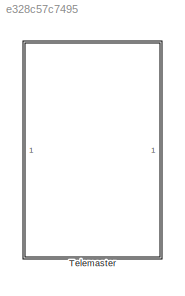
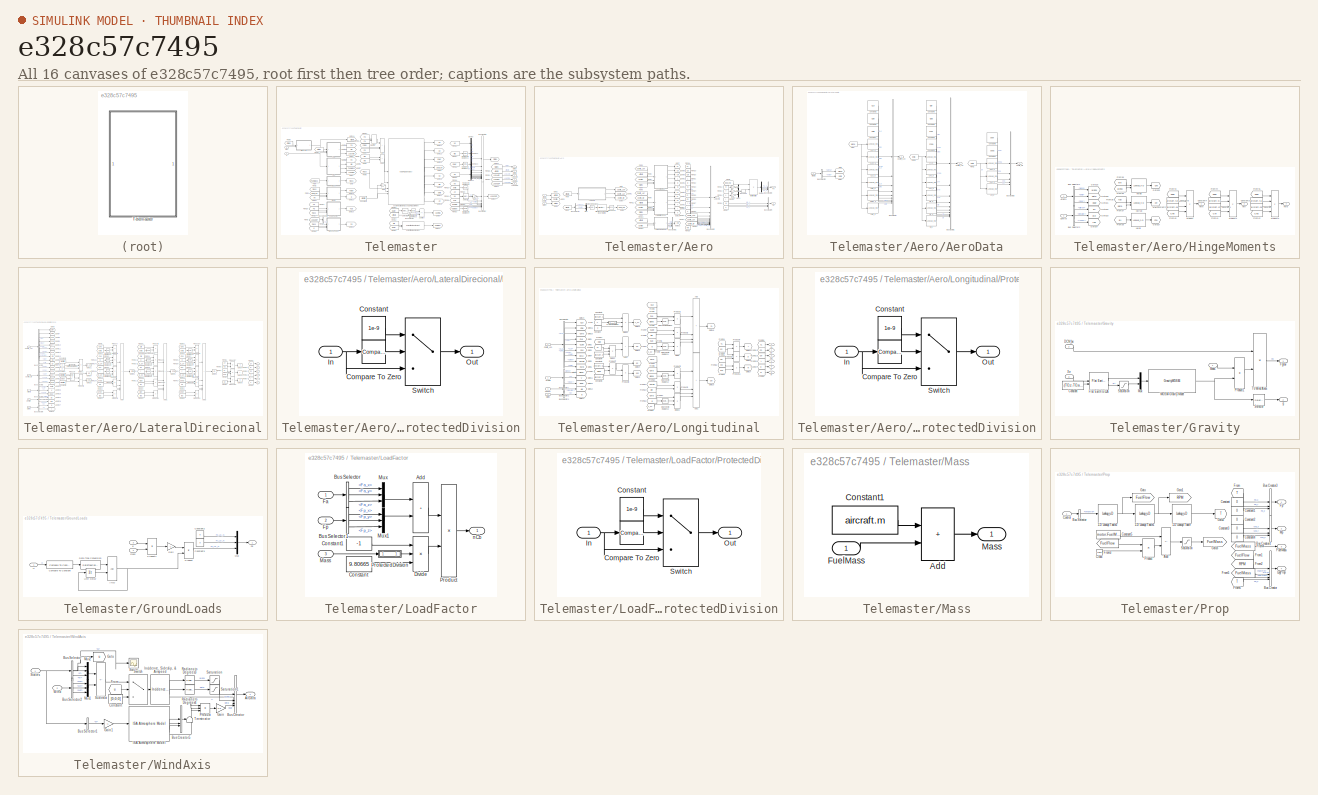
[diagram: thumbnail index - all 16 canvases of the model, root first then tree order]
MODEL slx_e328c57c7495
KIND library
CONFIG AbsTol = auto
CONFIG EnableMultiTasking = off
CONFIG FixedStep = auto
CONFIG MaxStep = auto
CONFIG MinStep = auto
CONFIG RelTol = 1e-3
CONFIG SampleTimeConstraint = Unconstrained
CONFIG SolverName = VariableStepAuto
CONFIG StartTime = 0.0
CONFIG StopTime = 10.0
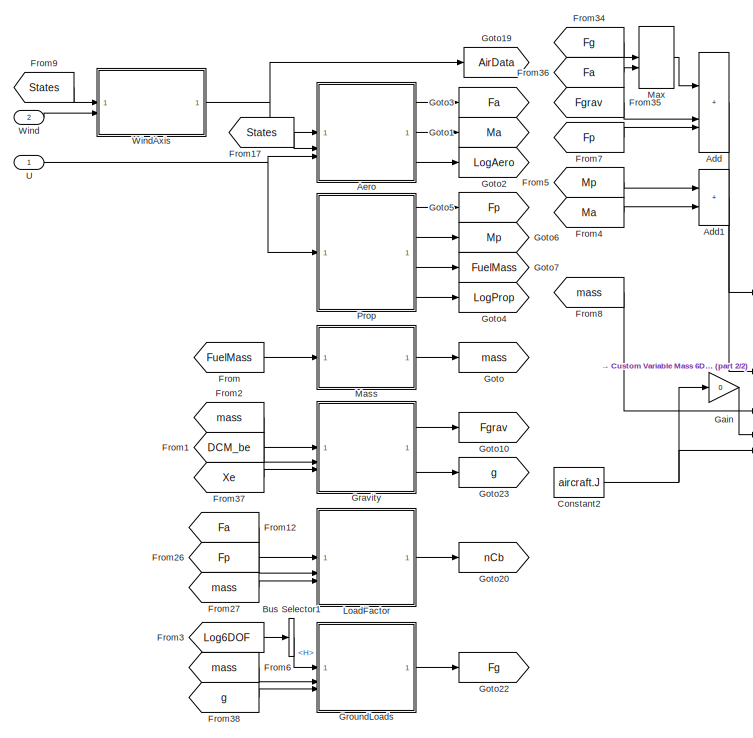
[diagram: Telemaster - part 1/2, left side, full height]
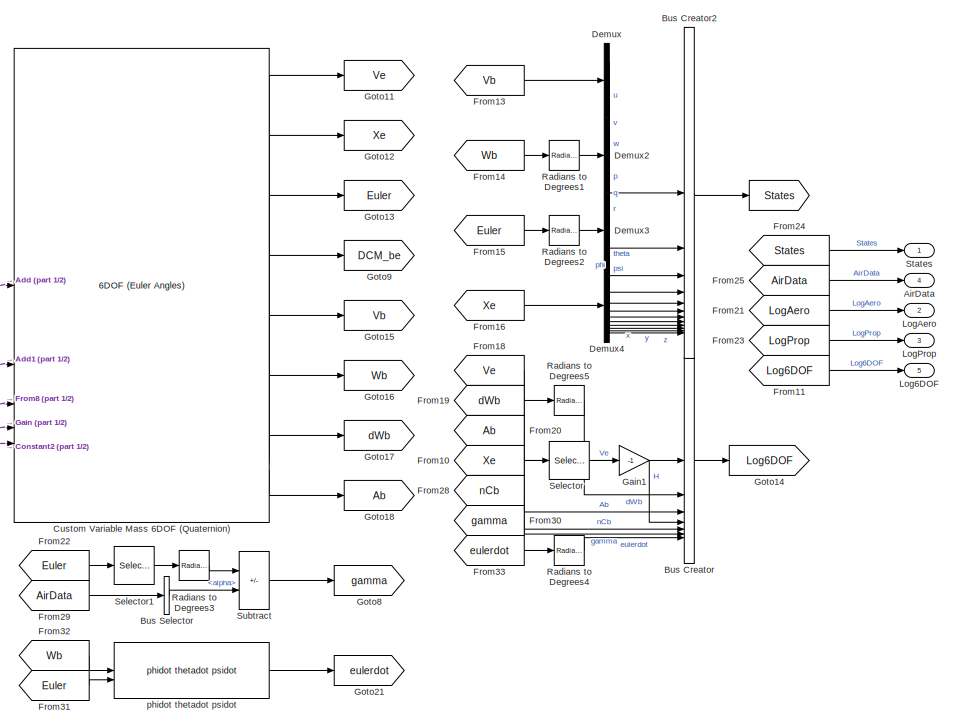
[diagram: Telemaster - part 2/2, right side, full height]
BLOCK [SubSystem] Telemaster
  TreatAsAtomicUnit = on
BLOCK [Goto] Telemaster/ 
  GotoTag = States
BLOCK [Sum] Telemaster/Add
  IconShape = rectangular
  Inputs = 3
BLOCK [Sum] Telemaster/Add1
  IconShape = rectangular
BLOCK [SubSystem] Telemaster/Aero
BLOCK [SubSystem] Telemaster/Aero/AeroData
BLOCK [Inport] Telemaster/Aero/AeroData/AirData
BLOCK [BusCreator] Telemaster/Aero/AeroData/Bus Creator
  DisplayOption = bar
  InheritFromInputs = on
  Inputs = 9
BLOCK [BusCreator] Telemaster/Aero/AeroData/Bus Creator1
  DisplayOption = bar
  InheritFromInputs = on
  Inputs = 10
BLOCK [BusCreator] Telemaster/Aero/AeroData/Bus Creator2
  DisplayOption = bar
  InheritFromInputs = on
  Inputs = 5
BLOCK [BusSelector] Telemaster/Aero/AeroData/Bus Selector
  OutputSignals = alpha,beta
BLOCK [Lookup_n-D] Telemaster/Aero/AeroData/CLa_a
  BreakpointsForDimension1 = alpha
  InputPortMap = u0
  InternalRulePriority = Speed
  NumberOfTableDimensions = 1
  RndMeth = Simplest
  Table = CLa
BLOCK [Lookup_n-D] Telemaster/Aero/AeroData/CLde_a
  BreakpointsForDimension1 = alpha
  InputPortMap = u0
  InternalRulePriority = Speed
  NumberOfTableDimensions = 1
  RndMeth = Simplest
  Table = CLde
BLOCK [Lookup_n-D] Telemaster/Aero/AeroData/CLq_a
  BreakpointsForDimension1 = alpha
  InputPortMap = u0
  InternalRulePriority = Speed
  NumberOfTableDimensions = 1
  RndMeth = Simplest
  Table = CLq
BLOCK [Lookup_n-D] Telemaster/Aero/AeroData/CMa_a
  BreakpointsForDimension1 = alpha
  InputPortMap = u0
  InternalRulePriority = Speed
  NumberOfTableDimensions = 1
  RndMeth = Simplest
  Table = CMa
BLOCK [Lookup_n-D] Telemaster/Aero/AeroData/CMde_a
  BreakpointsForDimension1 = alpha
  InputPortMap = u0
  InternalRulePriority = Speed
  NumberOfTableDimensions = 1
  RndMeth = Simplest
  Table = CMde
BLOCK [Lookup_n-D] Telemaster/Aero/AeroData/CMq_a
  BreakpointsForDimension1 = alpha
  InputPortMap = u0
  InternalRulePriority = Speed
  NumberOfTableDimensions = 1
  RndMeth = Simplest
  Table = CMq
BLOCK [Lookup_n-D] Telemaster/Aero/AeroData/CYb_b
  BreakpointsForDimension1 = beta
  InputPortMap = u0
  InternalRulePriority = Speed
  NumberOfTableDimensions = 1
  RndMeth = Simplest
  Table = CYb
BLOCK [Lookup_n-D] Telemaster/Aero/AeroData/CYp_b
  BreakpointsForDimension1 = beta
  InputPortMap = u0
  InternalRulePriority = Speed
  NumberOfTableDimensions = 1
  RndMeth = Simplest
  Table = CYp
BLOCK [Lookup_n-D] Telemaster/Aero/AeroData/CYr_b
  BreakpointsForDimension1 = beta
  InputPortMap = u0
  InternalRulePriority = Speed
  NumberOfTableDimensions = 1
  RndMeth = Simplest
  Table = CYr
BLOCK [Lookup_n-D] Telemaster/Aero/AeroData/Clb_b
  BreakpointsForDimension1 = beta
  InputPortMap = u0
  InternalRulePriority = Speed
  NumberOfTableDimensions = 1
  RndMeth = Simplest
  Table = Clb
BLOCK [Lookup_n-D] Telemaster/Aero/AeroData/Clp_b
  BreakpointsForDimension1 = beta
  InputPortMap = u0
  InternalRulePriority = Speed
  NumberOfTableDimensions = 1
  RndMeth = Simplest
  Table = Clp
BLOCK [Lookup_n-D] Telemaster/Aero/AeroData/Clr_b
  BreakpointsForDimension1 = beta
  InputPortMap = u0
  InternalRulePriority = Speed
  NumberOfTableDimensions = 1
  RndMeth = Simplest
  Table = Clr
BLOCK [Lookup_n-D] Telemaster/Aero/AeroData/Cnb_b
  BreakpointsForDimension1 = beta
  InputPortMap = u0
  InternalRulePriority = Speed
  NumberOfTableDimensions = 1
  RndMeth = Simplest
  Table = Cnb
BLOCK [Lookup_n-D] Telemaster/Aero/AeroData/Cnp_b
  BreakpointsForDimension1 = beta
  InputPortMap = u0
  InternalRulePriority = Speed
  NumberOfTableDimensions = 1
  RndMeth = Simplest
  Table = Cnp
BLOCK [Lookup_n-D] Telemaster/Aero/AeroData/Cnr_b
  BreakpointsForDimension1 = beta
  InputPortMap = u0
  InternalRulePriority = Speed
  NumberOfTableDimensions = 1
  RndMeth = Simplest
  Table = Cnr
BLOCK [Outport] Telemaster/Aero/AeroData/Coeffs_Dir
  Port = 3
BLOCK [Outport] Telemaster/Aero/AeroData/Coeffs_Lat
  Port = 2
BLOCK [Outport] Telemaster/Aero/AeroData/Coeffs_Lon
BLOCK [Constant] Telemaster/Aero/AeroData/Constant
  SampleTime = -1
  Value = CM0
BLOCK [Constant] Telemaster/Aero/AeroData/Constant1
  SampleTime = -1
  Value = CD0
BLOCK [Constant] Telemaster/Aero/AeroData/Constant2
  SampleTime = -1
  Value = CL0
BLOCK [Constant] Telemaster/Aero/AeroData/Constant3
  SampleTime = -1
  Value = CYda
BLOCK [Constant] Telemaster/Aero/AeroData/Constant4
  SampleTime = -1
  Value = CYdr
BLOCK [Constant] Telemaster/Aero/AeroData/Constant5
  SampleTime = -1
  Value = Clda
BLOCK [Constant] Telemaster/Aero/AeroData/Constant6
  SampleTime = -1
  Value = Cldr
BLOCK [Constant] Telemaster/Aero/AeroData/Constant7
  SampleTime = -1
  Value = Cnda
BLOCK [Constant] Telemaster/Aero/AeroData/Constant8
  SampleTime = -1
  Value = Cndr
BLOCK [From] Telemaster/Aero/AeroData/From
  GotoTag = alpha
BLOCK [From] Telemaster/Aero/AeroData/From1
  GotoTag = beta
BLOCK [From] Telemaster/Aero/AeroData/From2
  GotoTag = beta
BLOCK [Goto] Telemaster/Aero/AeroData/Goto
  GotoTag = alpha
BLOCK [Goto] Telemaster/Aero/AeroData/Goto1
  GotoTag = beta
BLOCK [Inport] Telemaster/Aero/AirData
  SampleTime = dt
BLOCK [BusCreator] Telemaster/Aero/Bus Creator1
  DisplayOption = bar
  InheritFromInputs = on
  Inputs = 3
BLOCK [BusCreator] Telemaster/Aero/Bus Creator3
  DisplayOption = bar
  InheritFromInputs = on
  Inputs = 3
BLOCK [BusCreator] Telemaster/Aero/Bus Creator4
  DisplayOption = bar
  InheritFromInputs = on
  Inputs = 3
BLOCK [BusCreator] Telemaster/Aero/Bus Creator5
  DisplayOption = bar
  InheritFromInputs = on
  Inputs = 16
BLOCK [BusSelector] Telemaster/Aero/Bus Selector
  OutputSignals = alpha,beta
BLOCK [Inport] Telemaster/Aero/Control
  Port = 3
  SampleTime = dt
BLOCK [Reference] Telemaster/Aero/Degrees to Radians  REF=simulink_extras/Transformations/Degrees to
Radians
  SourceBlock = simulink_extras/Transformations/Degrees to\nRadians
  SourceType = DegreesToRadians
BLOCK [Demux] Telemaster/Aero/Demux
  Outputs = 3
BLOCK [Reference] Telemaster/Aero/Direction Cosine Matrix Body to Wind  REF=aerolibtransform2/Direction Cosine Matrix
Body to Wind
  SourceBlock = aerolibtransform2/Direction Cosine Matrix\nBody to Wind
  SourceType = DCM Body to Wind
BLOCK [Outport] Telemaster/Aero/Fa
  SampleTime = dt
BLOCK [From] Telemaster/Aero/From
  GotoTag = AirData
BLOCK [From] Telemaster/Aero/From1
  GotoTag = Control
BLOCK [From] Telemaster/Aero/From10
  GotoTag = Control
BLOCK [From] Telemaster/Aero/From11
  GotoTag = AirData
BLOCK [From] Telemaster/Aero/From12
  GotoTag = D
BLOCK [From] Telemaster/Aero/From13
  GotoTag = Y
BLOCK [From] Telemaster/Aero/From14
  GotoTag = L
BLOCK [From] Telemaster/Aero/From15
  GotoTag = l
BLOCK [From] Telemaster/Aero/From16
  GotoTag = M
BLOCK [From] Telemaster/Aero/From17
  GotoTag = n
BLOCK [From] Telemaster/Aero/From18
  GotoTag = CL
BLOCK [From] Telemaster/Aero/From19
  GotoTag = CD
BLOCK [From] Telemaster/Aero/From2
  GotoTag = AirData
BLOCK [From] Telemaster/Aero/From20
  GotoTag = CM
BLOCK [From] Telemaster/Aero/From21
  GotoTag = L
BLOCK [From] Telemaster/Aero/From22
  GotoTag = D
BLOCK [From] Telemaster/Aero/From23
  GotoTag = M
BLOCK [From] Telemaster/Aero/From24
  GotoTag = CY
BLOCK [From] Telemaster/Aero/From25
  GotoTag = Cl
BLOCK [From] Telemaster/Aero/From26
  GotoTag = Cn
BLOCK [From] Telemaster/Aero/From27
  GotoTag = Y
BLOCK [From] Telemaster/Aero/From28
  GotoTag = l
BLOCK [From] Telemaster/Aero/From29
  GotoTag = n
BLOCK [From] Telemaster/Aero/From3
  GotoTag = Coeffs_Lon
BLOCK [From] Telemaster/Aero/From30
  GotoTag = Coeffs_Lon
BLOCK [From] Telemaster/Aero/From31
  GotoTag = Coeffs_Lat
BLOCK [From] Telemaster/Aero/From32
  GotoTag = Coeffs_Dir
BLOCK [From] Telemaster/Aero/From33
  GotoTag = AirData
BLOCK [From] Telemaster/Aero/From34
  GotoTag = Control
BLOCK [From] Telemaster/Aero/From38
  GotoTag = HM
BLOCK [From] Telemaster/Aero/From4
  GotoTag = States
BLOCK [From] Telemaster/Aero/From5
  GotoTag = Coeffs_Lat
BLOCK [From] Telemaster/Aero/From6
  GotoTag = Coeffs_Dir
BLOCK [From] Telemaster/Aero/From7
  GotoTag = AirData
BLOCK [From] Telemaster/Aero/From8
  GotoTag = DCM_bw
BLOCK [From] Telemaster/Aero/From9
  GotoTag = States
BLOCK [Gain] Telemaster/Aero/Gain
  Gain = -1
BLOCK [Gain] Telemaster/Aero/Gain1
  Gain = -1
BLOCK [Gain] Telemaster/Aero/Gain2
  Gain = -1
BLOCK [Goto] Telemaster/Aero/Goto
  GotoTag = Coeffs_Lon
BLOCK [Goto] Telemaster/Aero/Goto1
  GotoTag = Coeffs_Lat
BLOCK [Goto] Telemaster/Aero/Goto10
  GotoTag = L
BLOCK [Goto] Telemaster/Aero/Goto11
  GotoTag = D
BLOCK [Goto] Telemaster/Aero/Goto12
  GotoTag = M
BLOCK [Goto] Telemaster/Aero/Goto13
  GotoTag = Y
BLOCK [Goto] Telemaster/Aero/Goto14
  GotoTag = l
BLOCK [Goto] Telemaster/Aero/Goto15
  GotoTag = n
BLOCK [Goto] Telemaster/Aero/Goto16
  GotoTag = CY
BLOCK [Goto] Telemaster/Aero/Goto17
  GotoTag = Cl
BLOCK [Goto] Telemaster/Aero/Goto18
  GotoTag = Cn
BLOCK [Goto] Telemaster/Aero/Goto2
  GotoTag = AirData
BLOCK [Goto] Telemaster/Aero/Goto22
  GotoTag = HM
BLOCK [Goto] Telemaster/Aero/Goto3
  GotoTag = Control
BLOCK [Goto] Telemaster/Aero/Goto4
  GotoTag = States
BLOCK [Goto] Telemaster/Aero/Goto5
  GotoTag = Coeffs_Dir
BLOCK [Goto] Telemaster/Aero/Goto6
  GotoTag = DCM_bw
BLOCK [Goto] Telemaster/Aero/Goto7
  GotoTag = CL
BLOCK [Goto] Telemaster/Aero/Goto8
  GotoTag = CD
BLOCK [Goto] Telemaster/Aero/Goto9
  GotoTag = CM
BLOCK [SubSystem] Telemaster/Aero/HingeMoments
BLOCK [Inport] Telemaster/Aero/HingeMoments/AirData
BLOCK [BusSelector] Telemaster/Aero/HingeMoments/Bus Selector1
  OutputSignals = alpha,beta,qbar
BLOCK [BusSelector] Telemaster/Aero/HingeMoments/Bus Selector2
  OutputSignals = aileron,elevator,rudder
BLOCK [Constant] Telemaster/Aero/HingeMoments/Constant
  SampleTime = -1
  Value = aircraft.ca
BLOCK [Constant] Telemaster/Aero/HingeMoments/Constant1
  SampleTime = -1
  Value = aircraft.cr
BLOCK [Constant] Telemaster/Aero/HingeMoments/Constant2
  SampleTime = -1
  Value = aircraft.ce
BLOCK [Constant] Telemaster/Aero/HingeMoments/Constant3
  SampleTime = -1
  Value = aircraft.Sa
BLOCK [Constant] Telemaster/Aero/HingeMoments/Constant4
  SampleTime = -1
  Value = aircraft.Sr
BLOCK [Constant] Telemaster/Aero/HingeMoments/Constant5
  SampleTime = -1
  Value = aircraft.Se
BLOCK [Inport] Telemaster/Aero/HingeMoments/Control
  Port = 2
BLOCK [From] Telemaster/Aero/HingeMoments/From35
  GotoTag = alpha
BLOCK [From] Telemaster/Aero/HingeMoments/From36
  GotoTag = ele
BLOCK [From] Telemaster/Aero/HingeMoments/From37
  GotoTag = beta
BLOCK [From] Telemaster/Aero/HingeMoments/From38
  GotoTag = rud
BLOCK [From] Telemaster/Aero/HingeMoments/From39
  GotoTag = ail
BLOCK [From] Telemaster/Aero/HingeMoments/From40
  GotoTag = Che
BLOCK [From] Telemaster/Aero/HingeMoments/From41
  GotoTag = Chr
BLOCK [From] Telemaster/Aero/HingeMoments/From42
  GotoTag = Cha
BLOCK [From] Telemaster/Aero/HingeMoments/From43
  GotoTag = qbar
BLOCK [From] Telemaster/Aero/HingeMoments/From44
  GotoTag = qbar
BLOCK [From] Telemaster/Aero/HingeMoments/From45
  GotoTag = qbar
BLOCK [Goto] Telemaster/Aero/HingeMoments/Goto19
  GotoTag = alpha
BLOCK [Goto] Telemaster/Aero/HingeMoments/Goto20
  GotoTag = beta
BLOCK [Goto] Telemaster/Aero/HingeMoments/Goto21
  GotoTag = qbar
BLOCK [Goto] Telemaster/Aero/HingeMoments/Goto22
  GotoTag = ail
BLOCK [Goto] Telemaster/Aero/HingeMoments/Goto23
  GotoTag = ele
BLOCK [Goto] Telemaster/Aero/HingeMoments/Goto24
  GotoTag = rud
BLOCK [Goto] Telemaster/Aero/HingeMoments/Goto25
  GotoTag = Che
BLOCK [Goto] Telemaster/Aero/HingeMoments/Goto26
  GotoTag = Chr
BLOCK [Goto] Telemaster/Aero/HingeMoments/Goto27
  GotoTag = Cha
BLOCK [Outport] Telemaster/Aero/HingeMoments/HMa
  Port = 3
BLOCK [Lookup_n-D] Telemaster/Aero/HingeMoments/HMail
  BreakpointsForDimension1 = Hmrud
  InputPortMap = u0
  InternalRulePriority = Speed
  NumberOfTableDimensions = 1
  RndMeth = Simplest
  Table = HM_ail
BLOCK [Outport] Telemaster/Aero/HingeMoments/HMe
BLOCK [Lookup_n-D] Telemaster/Aero/HingeMoments/HMele
  BreakpointsForDimension1 = Hmele
  BreakpointsForDimension2 = Hmalpha
  InputPortMap = u0,u1
  InternalRulePriority = Speed
  RndMeth = Simplest
  Table = HM_ele
BLOCK [Outport] Telemaster/Aero/HingeMoments/HMr
  Port = 2
BLOCK [Lookup_n-D] Telemaster/Aero/HingeMoments/HMrud
  BreakpointsForDimension1 = Hmrud
  BreakpointsForDimension2 = Hmbeta
  InputPortMap = u0,u1
  InternalRulePriority = Speed
  RndMeth = Simplest
  Table = HM_rud
BLOCK [Product] Telemaster/Aero/HingeMoments/Product
  Inputs = 4
BLOCK [Product] Telemaster/Aero/HingeMoments/Product1
  Inputs = 4
BLOCK [Product] Telemaster/Aero/HingeMoments/Product2
  Inputs = 4
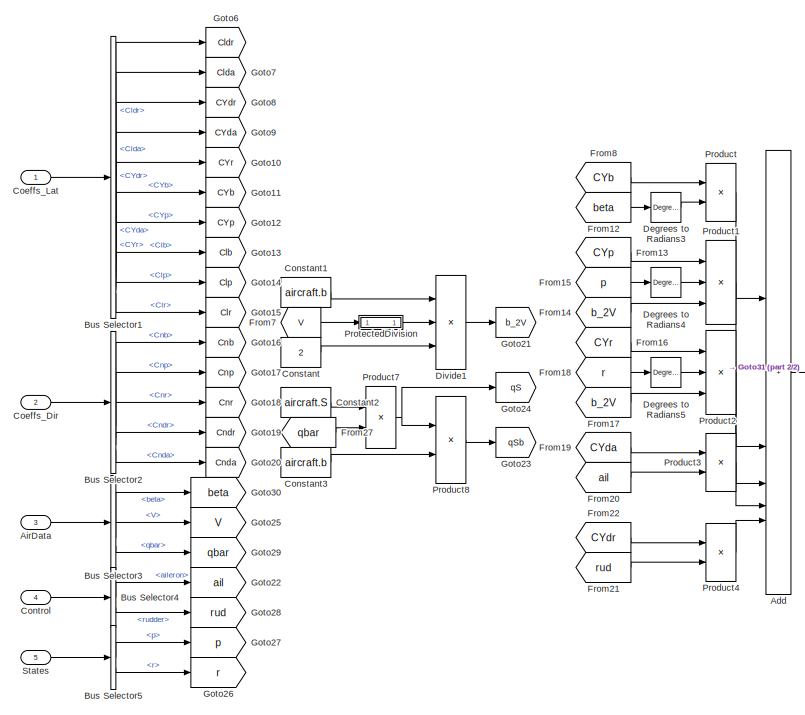
[diagram: Telemaster/Aero/LateralDirecional - part 1/2, left side, full height]
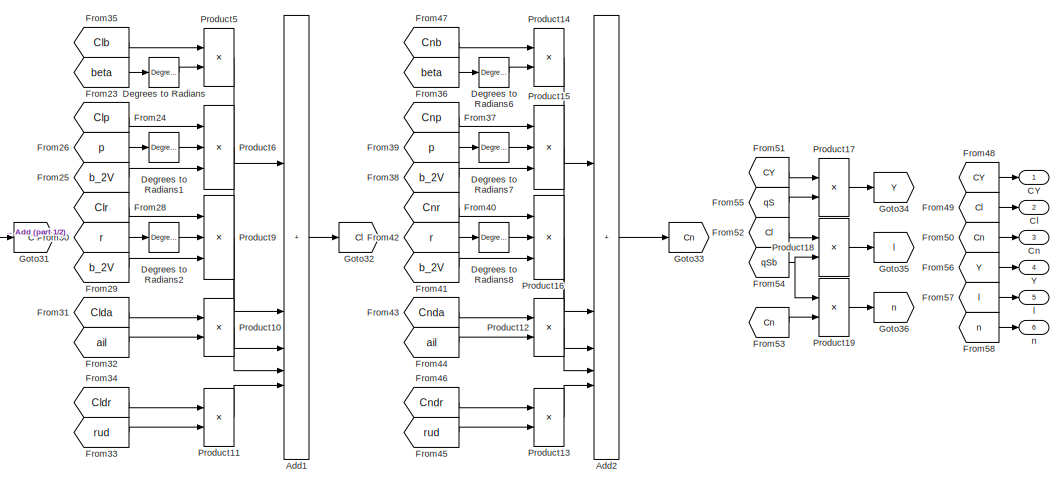
[diagram: Telemaster/Aero/LateralDirecional - part 2/2, middle right region]
BLOCK [SubSystem] Telemaster/Aero/LateralDirecional
BLOCK [Sum] Telemaster/Aero/LateralDirecional/Add
  IconShape = rectangular
  Inputs = 5
BLOCK [Sum] Telemaster/Aero/LateralDirecional/Add1
  IconShape = rectangular
  Inputs = 5
BLOCK [Sum] Telemaster/Aero/LateralDirecional/Add2
  IconShape = rectangular
  Inputs = 5
BLOCK [Inport] Telemaster/Aero/LateralDirecional/AirData
  Port = 3
BLOCK [BusSelector] Telemaster/Aero/LateralDirecional/Bus Selector1
  OutputSignals = Cldr,Clda,CYdr,CYda,CYr,CYb,CYp,Clb,Clp,Clr
BLOCK [BusSelector] Telemaster/Aero/LateralDirecional/Bus Selector2
  OutputSignals = Cnb,Cnp,Cnr,Cndr,Cnda
BLOCK [BusSelector] Telemaster/Aero/LateralDirecional/Bus Selector3
  OutputSignals = beta,V,qbar
BLOCK [BusSelector] Telemaster/Aero/LateralDirecional/Bus Selector4
  OutputSignals = aileron,rudder
BLOCK [BusSelector] Telemaster/Aero/LateralDirecional/Bus Selector5
  OutputSignals = p,r
BLOCK [Outport] Telemaster/Aero/LateralDirecional/CY
BLOCK [Outport] Telemaster/Aero/LateralDirecional/Cl
  Port = 2
BLOCK [Outport] Telemaster/Aero/LateralDirecional/Cn
  Port = 3
BLOCK [Inport] Telemaster/Aero/LateralDirecional/Coeffs_Dir
  Port = 2
BLOCK [Inport] Telemaster/Aero/LateralDirecional/Coeffs_Lat
BLOCK [Constant] Telemaster/Aero/LateralDirecional/Constant
  SampleTime = -1
  Value = 2
BLOCK [Constant] Telemaster/Aero/LateralDirecional/Constant1
  SampleTime = -1
  Value = aircraft.b
BLOCK [Constant] Telemaster/Aero/LateralDirecional/Constant2
  Value = aircraft.S
BLOCK [Constant] Telemaster/Aero/LateralDirecional/Constant3
  Value = aircraft.b
BLOCK [Inport] Telemaster/Aero/LateralDirecional/Control
  Port = 4
BLOCK [Reference] Telemaster/Aero/LateralDirecional/Degrees to Radians  REF=simulink_extras/Transformations/Degrees to
Radians
  SourceBlock = simulink_extras/Transformations/Degrees to\nRadians
  SourceType = DegreesToRadians
BLOCK [Reference] Telemaster/Aero/LateralDirecional/Degrees to Radians1  REF=simulink_extras/Transformations/Degrees to
Radians
  SourceBlock = simulink_extras/Transformations/Degrees to\nRadians
  SourceType = DegreesToRadians
BLOCK [Reference] Telemaster/Aero/LateralDirecional/Degrees to Radians2  REF=simulink_extras/Transformations/Degrees to
Radians
  SourceBlock = simulink_extras/Transformations/Degrees to\nRadians
  SourceType = DegreesToRadians
BLOCK [Reference] Telemaster/Aero/LateralDirecional/Degrees to Radians3  REF=simulink_extras/Transformations/Degrees to
Radians
  SourceBlock = simulink_extras/Transformations/Degrees to\nRadians
  SourceType = DegreesToRadians
BLOCK [Reference] Telemaster/Aero/LateralDirecional/Degrees to Radians4  REF=simulink_extras/Transformations/Degrees to
Radians
  SourceBlock = simulink_extras/Transformations/Degrees to\nRadians
  SourceType = DegreesToRadians
BLOCK [Reference] Telemaster/Aero/LateralDirecional/Degrees to Radians5  REF=simulink_extras/Transformations/Degrees to
Radians
  SourceBlock = simulink_extras/Transformations/Degrees to\nRadians
  SourceType = DegreesToRadians
BLOCK [Reference] Telemaster/Aero/LateralDirecional/Degrees to Radians6  REF=simulink_extras/Transformations/Degrees to
Radians
  SourceBlock = simulink_extras/Transformations/Degrees to\nRadians
  SourceType = DegreesToRadians
BLOCK [Reference] Telemaster/Aero/LateralDirecional/Degrees to Radians7  REF=simulink_extras/Transformations/Degrees to
Radians
  SourceBlock = simulink_extras/Transformations/Degrees to\nRadians
  SourceType = DegreesToRadians
BLOCK [Reference] Telemaster/Aero/LateralDirecional/Degrees to Radians8  REF=simulink_extras/Transformations/Degrees to
Radians
  SourceBlock = simulink_extras/Transformations/Degrees to\nRadians
  SourceType = DegreesToRadians
BLOCK [Product] Telemaster/Aero/LateralDirecional/Divide1
  Inputs = *//
BLOCK [From] Telemaster/Aero/LateralDirecional/From12
  GotoTag = beta
BLOCK [From] Telemaster/Aero/LateralDirecional/From13
  GotoTag = CYp
BLOCK [From] Telemaster/Aero/LateralDirecional/From14
  GotoTag = b_2V
BLOCK [From] Telemaster/Aero/LateralDirecional/From15
  GotoTag = p
BLOCK [From] Telemaster/Aero/LateralDirecional/From16
  GotoTag = CYr
BLOCK [From] Telemaster/Aero/LateralDirecional/From17
  GotoTag = b_2V
BLOCK [From] Telemaster/Aero/LateralDirecional/From18
  GotoTag = r
BLOCK [From] Telemaster/Aero/LateralDirecional/From19
  GotoTag = CYda
BLOCK [From] Telemaster/Aero/LateralDirecional/From20
  GotoTag = ail
BLOCK [From] Telemaster/Aero/LateralDirecional/From21
  GotoTag = rud
BLOCK [From] Telemaster/Aero/LateralDirecional/From22
  GotoTag = CYdr
BLOCK [From] Telemaster/Aero/LateralDirecional/From23
  GotoTag = beta
BLOCK [From] Telemaster/Aero/LateralDirecional/From24
  GotoTag = Clp
BLOCK [From] Telemaster/Aero/LateralDirecional/From25
  GotoTag = b_2V
BLOCK [From] Telemaster/Aero/LateralDirecional/From26
  GotoTag = p
BLOCK [From] Telemaster/Aero/LateralDirecional/From27
  GotoTag = qbar
BLOCK [From] Telemaster/Aero/LateralDirecional/From28
  GotoTag = Clr
BLOCK [From] Telemaster/Aero/LateralDirecional/From29
  GotoTag = b_2V
BLOCK [From] Telemaster/Aero/LateralDirecional/From30
  GotoTag = r
BLOCK [From] Telemaster/Aero/LateralDirecional/From31
  GotoTag = Clda
BLOCK [From] Telemaster/Aero/LateralDirecional/From32
  GotoTag = ail
BLOCK [From] Telemaster/Aero/LateralDirecional/From33
  GotoTag = rud
BLOCK [From] Telemaster/Aero/LateralDirecional/From34
  GotoTag = Cldr
BLOCK [From] Telemaster/Aero/LateralDirecional/From35
  GotoTag = Clb
BLOCK [From] Telemaster/Aero/LateralDirecional/From36
  GotoTag = beta
BLOCK [From] Telemaster/Aero/LateralDirecional/From37
  GotoTag = Cnp
BLOCK [From] Telemaster/Aero/LateralDirecional/From38
  GotoTag = b_2V
BLOCK [From] Telemaster/Aero/LateralDirecional/From39
  GotoTag = p
BLOCK [From] Telemaster/Aero/LateralDirecional/From40
  GotoTag = Cnr
BLOCK [From] Telemaster/Aero/LateralDirecional/From41
  GotoTag = b_2V
BLOCK [From] Telemaster/Aero/LateralDirecional/From42
  GotoTag = r
BLOCK [From] Telemaster/Aero/LateralDirecional/From43
  GotoTag = Cnda
BLOCK [From] Telemaster/Aero/LateralDirecional/From44
  GotoTag = ail
BLOCK [From] Telemaster/Aero/LateralDirecional/From45
  GotoTag = rud
BLOCK [From] Telemaster/Aero/LateralDirecional/From46
  GotoTag = Cndr
BLOCK [From] Telemaster/Aero/LateralDirecional/From47
  GotoTag = Cnb
BLOCK [From] Telemaster/Aero/LateralDirecional/From48
  GotoTag = CY
BLOCK [From] Telemaster/Aero/LateralDirecional/From49
  GotoTag = Cl
BLOCK [From] Telemaster/Aero/LateralDirecional/From50
  GotoTag = Cn
BLOCK [From] Telemaster/Aero/LateralDirecional/From51
  GotoTag = CY
BLOCK [From] Telemaster/Aero/LateralDirecional/From52
  GotoTag = Cl
BLOCK [From] Telemaster/Aero/LateralDirecional/From53
  GotoTag = Cn
BLOCK [From] Telemaster/Aero/LateralDirecional/From54
  GotoTag = qSb
BLOCK [From] Telemaster/Aero/LateralDirecional/From55
  GotoTag = qS
BLOCK [From] Telemaster/Aero/LateralDirecional/From56
  GotoTag = Y
BLOCK [From] Telemaster/Aero/LateralDirecional/From57
  GotoTag = l
BLOCK [From] Telemaster/Aero/LateralDirecional/From58
  GotoTag = n
BLOCK [From] Telemaster/Aero/LateralDirecional/From7
  GotoTag = V
BLOCK [From] Telemaster/Aero/LateralDirecional/From8
  GotoTag = CYb
BLOCK [Goto] Telemaster/Aero/LateralDirecional/Goto10
  GotoTag = CYr
BLOCK [Goto] Telemaster/Aero/LateralDirecional/Goto11
  GotoTag = CYb
BLOCK [Goto] Telemaster/Aero/LateralDirecional/Goto12
  GotoTag = CYp
BLOCK [Goto] Telemaster/Aero/LateralDirecional/Goto13
  GotoTag = Clb
BLOCK [Goto] Telemaster/Aero/LateralDirecional/Goto14
  GotoTag = Clp
BLOCK [Goto] Telemaster/Aero/LateralDirecional/Goto15
  GotoTag = Clr
BLOCK [Goto] Telemaster/Aero/LateralDirecional/Goto16
  GotoTag = Cnb
BLOCK [Goto] Telemaster/Aero/LateralDirecional/Goto17
  GotoTag = Cnp
BLOCK [Goto] Telemaster/Aero/LateralDirecional/Goto18
  GotoTag = Cnr
BLOCK [Goto] Telemaster/Aero/LateralDirecional/Goto19
  GotoTag = Cndr
BLOCK [Goto] Telemaster/Aero/LateralDirecional/Goto20
  GotoTag = Cnda
BLOCK [Goto] Telemaster/Aero/LateralDirecional/Goto21
  GotoTag = b_2V
BLOCK [Goto] Telemaster/Aero/LateralDirecional/Goto22
  GotoTag = ail
BLOCK [Goto] Telemaster/Aero/LateralDirecional/Goto23
  GotoTag = qSb
BLOCK [Goto] Telemaster/Aero/LateralDirecional/Goto24
  GotoTag = qS
BLOCK [Goto] Telemaster/Aero/LateralDirecional/Goto25
  GotoTag = V
BLOCK [Goto] Telemaster/Aero/LateralDirecional/Goto26
  GotoTag = r
BLOCK [Goto] Telemaster/Aero/LateralDirecional/Goto27
  GotoTag = p
BLOCK [Goto] Telemaster/Aero/LateralDirecional/Goto28
  GotoTag = rud
BLOCK [Goto] Telemaster/Aero/LateralDirecional/Goto29
  GotoTag = qbar
BLOCK [Goto] Telemaster/Aero/LateralDirecional/Goto30
  GotoTag = beta
BLOCK [Goto] Telemaster/Aero/LateralDirecional/Goto31
  GotoTag = CY
BLOCK [Goto] Telemaster/Aero/LateralDirecional/Goto32
  GotoTag = Cl
BLOCK [Goto] Telemaster/Aero/LateralDirecional/Goto33
  GotoTag = Cn
BLOCK [Goto] Telemaster/Aero/LateralDirecional/Goto34
  GotoTag = Y
BLOCK [Goto] Telemaster/Aero/LateralDirecional/Goto35
  GotoTag = l
BLOCK [Goto] Telemaster/Aero/LateralDirecional/Goto36
  GotoTag = n
BLOCK [Goto] Telemaster/Aero/LateralDirecional/Goto6
  GotoTag = Cldr
BLOCK [Goto] Telemaster/Aero/LateralDirecional/Goto7
  GotoTag = Clda
BLOCK [Goto] Telemaster/Aero/LateralDirecional/Goto8
  GotoTag = CYdr
BLOCK [Goto] Telemaster/Aero/LateralDirecional/Goto9
  GotoTag = CYda
BLOCK [Product] Telemaster/Aero/LateralDirecional/Product
BLOCK [Product] Telemaster/Aero/LateralDirecional/Product1
  Inputs = 3
BLOCK [Product] Telemaster/Aero/LateralDirecional/Product10
BLOCK [Product] Telemaster/Aero/LateralDirecional/Product11
BLOCK [Product] Telemaster/Aero/LateralDirecional/Product12
BLOCK [Product] Telemaster/Aero/LateralDirecional/Product13
BLOCK [Product] Telemaster/Aero/LateralDirecional/Product14
BLOCK [Product] Telemaster/Aero/LateralDirecional/Product15
  Inputs = 3
BLOCK [Product] Telemaster/Aero/LateralDirecional/Product16
  Inputs = 3
BLOCK [Product] Telemaster/Aero/LateralDirecional/Product17
BLOCK [Product] Telemaster/Aero/LateralDirecional/Product18
BLOCK [Product] Telemaster/Aero/LateralDirecional/Product19
BLOCK [Product] Telemaster/Aero/LateralDirecional/Product2
  Inputs = 3
BLOCK [Product] Telemaster/Aero/LateralDirecional/Product3
BLOCK [Product] Telemaster/Aero/LateralDirecional/Product4
BLOCK [Product] Telemaster/Aero/LateralDirecional/Product5
BLOCK [Product] Telemaster/Aero/LateralDirecional/Product6
  Inputs = 3
BLOCK [Product] Telemaster/Aero/LateralDirecional/Product7
BLOCK [Product] Telemaster/Aero/LateralDirecional/Product8
BLOCK [Product] Telemaster/Aero/LateralDirecional/Product9
  Inputs = 3
BLOCK [SubSystem] Telemaster/Aero/LateralDirecional/ProtectedDivision
BLOCK [Reference] Telemaster/Aero/LateralDirecional/ProtectedDivision/Compare To Zero  REF=simulink/Logic and Bit
Operations/Compare
To Zero
  SourceBlock = simulink/Logic and Bit\nOperations/Compare\nTo Zero
  SourceType = Compare To Zero
BLOCK [Constant] Telemaster/Aero/LateralDirecional/ProtectedDivision/Constant
  SampleTime = -1
  Value = 1e-9
BLOCK [Inport] Telemaster/Aero/LateralDirecional/ProtectedDivision/In
BLOCK [Outport] Telemaster/Aero/LateralDirecional/ProtectedDivision/Out
BLOCK [Switch] Telemaster/Aero/LateralDirecional/ProtectedDivision/Switch
  Criteria = u2 > Threshold
  InputSameDT = off
  SaturateOnIntegerOverflow = off
BLOCK [Inport] Telemaster/Aero/LateralDirecional/States
  Port = 5
BLOCK [Outport] Telemaster/Aero/LateralDirecional/Y
  Port = 4
BLOCK [Outport] Telemaster/Aero/LateralDirecional/l
  Port = 5
BLOCK [Outport] Telemaster/Aero/LateralDirecional/n
  Port = 6
BLOCK [Outport] Telemaster/Aero/LogAero
  Port = 3
  SampleTime = dt
BLOCK [SubSystem] Telemaster/Aero/Longitudinal
BLOCK [Sum] Telemaster/Aero/Longitudinal/Add
  IconShape = rectangular
  Inputs = 4
BLOCK [Sum] Telemaster/Aero/Longitudinal/Add1
  IconShape = rectangular
  Inputs = 4
BLOCK [Sum] Telemaster/Aero/Longitudinal/Add2
  IconShape = rectangular
  Inputs = 2
BLOCK [Inport] Telemaster/Aero/Longitudinal/AirData
  Port = 2
BLOCK [BusSelector] Telemaster/Aero/Longitudinal/Bus Selector
  OutputSignals = CL0,CD0,CM0,CLa,CLde,CLq,CMa,CMde,CMq
BLOCK [BusSelector] Telemaster/Aero/Longitudinal/Bus Selector1
  OutputSignals = alpha,V,qbar
BLOCK [BusSelector] Telemaster/Aero/Longitudinal/Bus Selector2
  OutputSignals = elevator
BLOCK [BusSelector] Telemaster/Aero/Longitudinal/Bus Selector3
  OutputSignals = q
BLOCK [Outport] Telemaster/Aero/Longitudinal/CD
  Port = 2
BLOCK [Outport] Telemaster/Aero/Longitudinal/CL
BLOCK [Outport] Telemaster/Aero/Longitudinal/CM
  Port = 3
BLOCK [Inport] Telemaster/Aero/Longitudinal/Coeffs_Lon
BLOCK [Constant] Telemaster/Aero/Longitudinal/Constant
  SampleTime = -1
  Value = 2
BLOCK [Constant] Telemaster/Aero/Longitudinal/Constant1
  SampleTime = -1
  Value = aircraft.c
BLOCK [Constant] Telemaster/Aero/Longitudinal/Constant2
  Value = aircraft.S
BLOCK [Constant] Telemaster/Aero/Longitudinal/Constant3
  Value = aircraft.c
BLOCK [Constant] Telemaster/Aero/Longitudinal/Constant4
  Value = aircraft.k
BLOCK [Inport] Telemaster/Aero/Longitudinal/Control
  Port = 3
BLOCK [Outport] Telemaster/Aero/Longitudinal/D
  Port = 5
BLOCK [Reference] Telemaster/Aero/Longitudinal/Degrees to Radians  REF=simulink_extras/Transformations/Degrees to
Radians
  SourceBlock = simulink_extras/Transformations/Degrees to\nRadians
  SourceType = DegreesToRadians
BLOCK [Reference] Telemaster/Aero/Longitudinal/Degrees to Radians1  REF=simulink_extras/Transformations/Degrees to
Radians
  SourceBlock = simulink_extras/Transformations/Degrees to\nRadians
  SourceType = DegreesToRadians
BLOCK [Reference] Telemaster/Aero/Longitudinal/Degrees to Radians2  REF=simulink_extras/Transformations/Degrees to
Radians
  SourceBlock = simulink_extras/Transformations/Degrees to\nRadians
  SourceType = DegreesToRadians
BLOCK [Reference] Telemaster/Aero/Longitudinal/Degrees to Radians3  REF=simulink_extras/Transformations/Degrees to
Radians
  SourceBlock = simulink_extras/Transformations/Degrees to\nRadians
  SourceType = DegreesToRadians
BLOCK [Product] Telemaster/Aero/Longitudinal/Divide
  Inputs = ***
BLOCK [Product] Telemaster/Aero/Longitudinal/Divide1
  Inputs = *//
BLOCK [Product] Telemaster/Aero/Longitudinal/Divide2
  Inputs = ***
BLOCK [Product] Telemaster/Aero/Longitudinal/Divide3
  Inputs = ***
BLOCK [From] Telemaster/Aero/Longitudinal/From
  GotoTag = V
BLOCK [From] Telemaster/Aero/Longitudinal/From1
  GotoTag = CLa
BLOCK [From] Telemaster/Aero/Longitudinal/From10
  GotoTag = alpha
BLOCK [From] Telemaster/Aero/Longitudinal/From11
  GotoTag = CM0
BLOCK [From] Telemaster/Aero/Longitudinal/From12
  GotoTag = CMde
BLOCK [From] Telemaster/Aero/Longitudinal/From13
  GotoTag = ele
BLOCK [From] Telemaster/Aero/Longitudinal/From14
  GotoTag = CMq
BLOCK [From] Telemaster/Aero/Longitudinal/From15
  GotoTag = q
BLOCK [From] Telemaster/Aero/Longitudinal/From16
  GotoTag = c_2V
BLOCK [From] Telemaster/Aero/Longitudinal/From17
  GotoTag = CD0
BLOCK [From] Telemaster/Aero/Longitudinal/From18
  GotoTag = CL
BLOCK [From] Telemaster/Aero/Longitudinal/From2
  GotoTag = alpha
BLOCK [From] Telemaster/Aero/Longitudinal/From24
  GotoTag = CL
BLOCK [From] Telemaster/Aero/Longitudinal/From25
  GotoTag = CD
BLOCK [From] Telemaster/Aero/Longitudinal/From26
  GotoTag = CM
BLOCK [From] Telemaster/Aero/Longitudinal/From27
  GotoTag = qbar
BLOCK [From] Telemaster/Aero/Longitudinal/From28
  GotoTag = qS
BLOCK [From] Telemaster/Aero/Longitudinal/From29
  GotoTag = qSc
BLOCK [From] Telemaster/Aero/Longitudinal/From3
  GotoTag = CL0
BLOCK [From] Telemaster/Aero/Longitudinal/From30
  GotoTag = CL
BLOCK [From] Telemaster/Aero/Longitudinal/From31
  GotoTag = CD
BLOCK [From] Telemaster/Aero/Longitudinal/From32
  GotoTag = CM
BLOCK [From] Telemaster/Aero/Longitudinal/From33
  GotoTag = L
BLOCK [From] Telemaster/Aero/Longitudinal/From34
  GotoTag = D
BLOCK [From] Telemaster/Aero/Longitudinal/From35
  GotoTag = M
BLOCK [From] Telemaster/Aero/Longitudinal/From4
  GotoTag = CLde
BLOCK [From] Telemaster/Aero/Longitudinal/From5
  GotoTag = ele
BLOCK [From] Telemaster/Aero/Longitudinal/From6
  GotoTag = CLq
BLOCK [From] Telemaster/Aero/Longitudinal/From7
  GotoTag = q
BLOCK [From] Telemaster/Aero/Longitudinal/From8
  GotoTag = CMa
BLOCK [From] Telemaster/Aero/Longitudinal/From9
  GotoTag = c_2V
BLOCK [Goto] Telemaster/Aero/Longitudinal/Goto1
  GotoTag = CLa
BLOCK [Goto] Telemaster/Aero/Longitudinal/Goto11
  GotoTag = V
BLOCK [Goto] Telemaster/Aero/Longitudinal/Goto12
  GotoTag = ele
BLOCK [Goto] Telemaster/Aero/Longitudinal/Goto13
  GotoTag = c_2V
BLOCK [Goto] Telemaster/Aero/Longitudinal/Goto14
  GotoTag = CL0
BLOCK [Goto] Telemaster/Aero/Longitudinal/Goto15
  GotoTag = CD0
BLOCK [Goto] Telemaster/Aero/Longitudinal/Goto16
  GotoTag = CM0
BLOCK [Goto] Telemaster/Aero/Longitudinal/Goto17
  GotoTag = q
BLOCK [Goto] Telemaster/Aero/Longitudinal/Goto18
  GotoTag = CL
BLOCK [Goto] Telemaster/Aero/Longitudinal/Goto19
  GotoTag = CM
BLOCK [Goto] Telemaster/Aero/Longitudinal/Goto2
  GotoTag = CLde
BLOCK [Goto] Telemaster/Aero/Longitudinal/Goto21
  GotoTag = CD
BLOCK [Goto] Telemaster/Aero/Longitudinal/Goto22
  GotoTag = qbar
BLOCK [Goto] Telemaster/Aero/Longitudinal/Goto23
  GotoTag = qSc
BLOCK [Goto] Telemaster/Aero/Longitudinal/Goto24
  GotoTag = qS
BLOCK [Goto] Telemaster/Aero/Longitudinal/Goto25
  GotoTag = L
BLOCK [Goto] Telemaster/Aero/Longitudinal/Goto26
  GotoTag = D
BLOCK [Goto] Telemaster/Aero/Longitudinal/Goto27
  GotoTag = M
BLOCK [Goto] Telemaster/Aero/Longitudinal/Goto3
  GotoTag = CLq
BLOCK [Goto] Telemaster/Aero/Longitudinal/Goto4
  GotoTag = CMa
BLOCK [Goto] Telemaster/Aero/Longitudinal/Goto5
  GotoTag = CMde
BLOCK [Goto] Telemaster/Aero/Longitudinal/Goto6
  GotoTag = CMq
BLOCK [Goto] Telemaster/Aero/Longitudinal/Goto9
  GotoTag = alpha
BLOCK [Outport] Telemaster/Aero/Longitudinal/L
  Port = 4
BLOCK [Outport] Telemaster/Aero/Longitudinal/M
  Port = 6
BLOCK [Product] Telemaster/Aero/Longitudinal/Product1
BLOCK [Product] Telemaster/Aero/Longitudinal/Product10
BLOCK [Product] Telemaster/Aero/Longitudinal/Product11
BLOCK [Product] Telemaster/Aero/Longitudinal/Product2
BLOCK [Product] Telemaster/Aero/Longitudinal/Product3
BLOCK [Product] Telemaster/Aero/Longitudinal/Product4
BLOCK [Product] Telemaster/Aero/Longitudinal/Product7
BLOCK [Product] Telemaster/Aero/Longitudinal/Product8
BLOCK [Product] Telemaster/Aero/Longitudinal/Product9
BLOCK [SubSystem] Telemaster/Aero/Longitudinal/ProtectedDivision
BLOCK [Reference] Telemaster/Aero/Longitudinal/ProtectedDivision/Compare To Zero  REF=simulink/Logic and Bit
Operations/Compare
To Zero
  SourceBlock = simulink/Logic and Bit\nOperations/Compare\nTo Zero
  SourceType = Compare To Zero
BLOCK [Constant] Telemaster/Aero/Longitudinal/ProtectedDivision/Constant
  SampleTime = -1
  Value = 1e-9
BLOCK [Inport] Telemaster/Aero/Longitudinal/ProtectedDivision/In
BLOCK [Outport] Telemaster/Aero/Longitudinal/ProtectedDivision/Out
BLOCK [Switch] Telemaster/Aero/Longitudinal/ProtectedDivision/Switch
  Criteria = u2 > Threshold
  InputSameDT = off
  SaturateOnIntegerOverflow = off
BLOCK [Inport] Telemaster/Aero/Longitudinal/States
  Port = 4
BLOCK [Outport] Telemaster/Aero/Ma
  Port = 2
  SampleTime = dt
BLOCK [Product] Telemaster/Aero/Matrix Multiply
  Multiplication = Matrix(*)
BLOCK [Mux] Telemaster/Aero/Mux
  DisplayOption = bar
  Inputs = 2
BLOCK [Mux] Telemaster/Aero/Mux1
  DisplayOption = bar
  Inputs = 3
BLOCK [Reshape] Telemaster/Aero/Reshape
  OutputDimensionality = Column vector (2-D)
BLOCK [Inport] Telemaster/Aero/States
  Port = 2
  SampleTime = dt
BLOCK [Math] Telemaster/Aero/Transpose
  Operator = transpose
BLOCK [Outport] Telemaster/AirData
  Port = 4
  SampleTime = dt
BLOCK [BusCreator] Telemaster/Bus Creator
  DisplayOption = bar
  InheritFromInputs = on
  Inputs = 7
BLOCK [BusCreator] Telemaster/Bus Creator2
  DisplayOption = bar
  InheritFromInputs = on
  Inputs = 12
BLOCK [BusSelector] Telemaster/Bus Selector
  OutputSignals = alpha
BLOCK [BusSelector] Telemaster/Bus Selector1
  OutputSignals = H
BLOCK [Constant] Telemaster/Constant2
  SampleTime = -1
  Value = aircraft.J
BLOCK [Reference] Telemaster/Custom Variable Mass 6DOF (Quaternion)  REF=shared6dof/6DOF (Euler Angles)
  SourceBlock = shared6dof/6DOF (Euler Angles)
  SourceType = 6DOF EoM (Body Axis)
BLOCK [Demux] Telemaster/Demux
  Outputs = 3
BLOCK [Demux] Telemaster/Demux2
  Outputs = 3
BLOCK [Demux] Telemaster/Demux3
  Outputs = 3
BLOCK [Demux] Telemaster/Demux4
  Outputs = 3
BLOCK [From] Telemaster/From
  GotoTag = FuelMass
BLOCK [From] Telemaster/From1
  GotoTag = DCM_be
BLOCK [From] Telemaster/From10
  GotoTag = Xe
BLOCK [From] Telemaster/From11
  GotoTag = Log6DOF
BLOCK [From] Telemaster/From12
  GotoTag = Fa
BLOCK [From] Telemaster/From13
  GotoTag = Vb
BLOCK [From] Telemaster/From14
  GotoTag = Wb
BLOCK [From] Telemaster/From15
  GotoTag = Euler
BLOCK [From] Telemaster/From16
  GotoTag = Xe
BLOCK [From] Telemaster/From17
  GotoTag = States
BLOCK [From] Telemaster/From18
  GotoTag = Ve
BLOCK [From] Telemaster/From19
  GotoTag = dWb
BLOCK [From] Telemaster/From2
  GotoTag = mass
BLOCK [From] Telemaster/From20
  GotoTag = Ab
BLOCK [From] Telemaster/From21
  GotoTag = LogAero
BLOCK [From] Telemaster/From22
  GotoTag = Euler
BLOCK [From] Telemaster/From23
  GotoTag = LogProp
BLOCK [From] Telemaster/From24
  GotoTag = States
BLOCK [From] Telemaster/From25
  GotoTag = AirData
BLOCK [From] Telemaster/From26
  GotoTag = Fp
BLOCK [From] Telemaster/From27
  GotoTag = mass
BLOCK [From] Telemaster/From28
  GotoTag = nCb
BLOCK [From] Telemaster/From29
  GotoTag = AirData
BLOCK [From] Telemaster/From3
  GotoTag = Log6DOF
BLOCK [From] Telemaster/From30
  GotoTag = gamma
BLOCK [From] Telemaster/From31
  GotoTag = Euler
BLOCK [From] Telemaster/From32
  GotoTag = Wb
BLOCK [From] Telemaster/From33
  GotoTag = eulerdot
BLOCK [From] Telemaster/From34
  GotoTag = Fg
BLOCK [From] Telemaster/From35
  GotoTag = Fgrav
BLOCK [From] Telemaster/From36
  GotoTag = Fa
BLOCK [From] Telemaster/From37
  GotoTag = Xe
BLOCK [From] Telemaster/From38
  GotoTag = g
BLOCK [From] Telemaster/From4
  GotoTag = Ma
BLOCK [From] Telemaster/From5
  GotoTag = Mp
BLOCK [From] Telemaster/From6
  GotoTag = mass
BLOCK [From] Telemaster/From7
  GotoTag = Fp
BLOCK [From] Telemaster/From8
  GotoTag = mass
BLOCK [From] Telemaster/From9
  GotoTag = States
BLOCK [Gain] Telemaster/Gain
  Gain = 0
BLOCK [Gain] Telemaster/Gain1
  Gain = -1
BLOCK [Goto] Telemaster/Goto
  GotoTag = mass
BLOCK [Goto] Telemaster/Goto1
  GotoTag = Ma
BLOCK [Goto] Telemaster/Goto10
  GotoTag = Fgrav
BLOCK [Goto] Telemaster/Goto11
  GotoTag = Ve
BLOCK [Goto] Telemaster/Goto12
  GotoTag = Xe
BLOCK [Goto] Telemaster/Goto13
  GotoTag = Euler
BLOCK [Goto] Telemaster/Goto14
  GotoTag = Log6DOF
BLOCK [Goto] Telemaster/Goto15
  GotoTag = Vb
BLOCK [Goto] Telemaster/Goto16
  GotoTag = Wb
BLOCK [Goto] Telemaster/Goto17
  GotoTag = dWb
BLOCK [Goto] Telemaster/Goto18
  GotoTag = Ab
BLOCK [Goto] Telemaster/Goto19
  GotoTag = AirData
BLOCK [Goto] Telemaster/Goto2
  GotoTag = LogAero
BLOCK [Goto] Telemaster/Goto20
  GotoTag = nCb
BLOCK [Goto] Telemaster/Goto21
  GotoTag = eulerdot
BLOCK [Goto] Telemaster/Goto22
  GotoTag = Fg
BLOCK [Goto] Telemaster/Goto23
  GotoTag = g
BLOCK [Goto] Telemaster/Goto3
  GotoTag = Fa
BLOCK [Goto] Telemaster/Goto4
  GotoTag = LogProp
BLOCK [Goto] Telemaster/Goto5
  GotoTag = Fp
BLOCK [Goto] Telemaster/Goto6
  GotoTag = Mp
BLOCK [Goto] Telemaster/Goto7
  GotoTag = FuelMass
BLOCK [Goto] Telemaster/Goto8
  GotoTag = gamma
BLOCK [Goto] Telemaster/Goto9
  GotoTag = DCM_be
BLOCK [SubSystem] Telemaster/Gravity
BLOCK [Constant] Telemaster/Gravity/Constant
  SampleTime = -1
  Value = -(TO.z-TO.alt0)
BLOCK [Inport] Telemaster/Gravity/DCM_be
  Port = 2
  SampleTime = dt
BLOCK [Outport] Telemaster/Gravity/Fgrav
  SampleTime = dt
BLOCK [Reference] Telemaster/Gravity/Flat Earth to LLA  REF=aerolibtransform2/Flat Earth to LLA
  SourceBlock = aerolibtransform2/Flat Earth to LLA
  SourceType = Flat Earth to LLA
BLOCK [Inport] Telemaster/Gravity/Mass
  SampleTime = dt
BLOCK [Mux] Telemaster/Gravity/Mux
  DisplayOption = bar
  Inputs = 2
BLOCK [Product] Telemaster/Gravity/Product1
BLOCK [Saturate] Telemaster/Gravity/Saturation
  LowerLimit = 0
  UpperLimit = 20e3
BLOCK [Selector] Telemaster/Gravity/Selector
  IndexOptions = Index vector (dialog)
  Indices = 3
  InputPortWidth = 3
  OutputSizes = 1
BLOCK [Product] Telemaster/Gravity/To Wind Axes
  InputSameDT = on
  Multiplication = Matrix(*)
  OutDataTypeStr = Inherit: Same as first input
  SaturateOnIntegerOverflow = on
BLOCK [GravityWGS84] Telemaster/Gravity/WGS84 Gravity Model  
BLOCK [Inport] Telemaster/Gravity/Xe
  NameLocation = left
  Port = 3
BLOCK [Outport] Telemaster/Gravity/g
  Port = 2
BLOCK [SubSystem] Telemaster/GroundLoads
BLOCK [Logic] Telemaster/GroundLoads/AND
  AllPortsSameDT = off
  IconShape = distinctive
  OutDataTypeStr = boolean
BLOCK [Reference] Telemaster/GroundLoads/Compare To Constant  REF=simulink/Logic and Bit
Operations/Compare
To Constant
  SourceBlock = simulink/Logic and Bit\nOperations/Compare\nTo Constant
  SourceType = Compare To Constant
BLOCK [Constant] Telemaster/GroundLoads/Constant2
  SampleTime = -1
  Value = 0
BLOCK [Constant] Telemaster/GroundLoads/Constant3
  SampleTime = -1
  Value = 0
BLOCK [DataTypeConversion] Telemaster/GroundLoads/Data Type Conversion
  OutDataTypeStr = double
  RndMeth = Floor
  SaturateOnIntegerOverflow = off
BLOCK [Outport] Telemaster/GroundLoads/Fg
BLOCK [Gain] Telemaster/GroundLoads/Gain
  Gain = -1
BLOCK [Inport] Telemaster/GroundLoads/H
BLOCK [Mux] Telemaster/GroundLoads/Mux
  DisplayOption = bar
  Inputs = 3
BLOCK [Product] Telemaster/GroundLoads/Product
BLOCK [Product] Telemaster/GroundLoads/Product1
BLOCK [UnitDelay] Telemaster/GroundLoads/Unit Delay
  HasFrameUpgradeWarning = on
  InitialCondition = 1
  SampleTime = -1
BLOCK [Inport] Telemaster/GroundLoads/g
  Port = 3
BLOCK [Inport] Telemaster/GroundLoads/mass
  Port = 2
BLOCK [SubSystem] Telemaster/LoadFactor
BLOCK [Sum] Telemaster/LoadFactor/Add
  IconShape = rectangular
  Inputs = 2
BLOCK [BusSelector] Telemaster/LoadFactor/Bus Selector
  OutputSignals = Fa_x,Fa_y,Fa_z
BLOCK [BusSelector] Telemaster/LoadFactor/Bus Selector1
  OutputSignals = Fp_x,Fp_y,Fp_z
BLOCK [Constant] Telemaster/LoadFactor/Constant
  SampleTime = dt
  Value = 9.80665
BLOCK [Constant] Telemaster/LoadFactor/Constant1
  SampleTime = dt
  Value = -1
BLOCK [Product] Telemaster/LoadFactor/Divide
  Inputs = *//
BLOCK [Inport] Telemaster/LoadFactor/Fa
  SampleTime = dt
BLOCK [Inport] Telemaster/LoadFactor/Fp
  Port = 2
  SampleTime = dt
BLOCK [Inport] Telemaster/LoadFactor/Mass
  Port = 3
  SampleTime = dt
BLOCK [Mux] Telemaster/LoadFactor/Mux
  DisplayOption = bar
  Inputs = 3
BLOCK [Mux] Telemaster/LoadFactor/Mux1
  DisplayOption = bar
  Inputs = 3
BLOCK [Product] Telemaster/LoadFactor/Product
BLOCK [SubSystem] Telemaster/LoadFactor/ProtectedDivision
BLOCK [Reference] Telemaster/LoadFactor/ProtectedDivision/Compare To Zero  REF=simulink/Logic and Bit
Operations/Compare
To Zero
  SourceBlock = simulink/Logic and Bit\nOperations/Compare\nTo Zero
  SourceType = Compare To Zero
BLOCK [Constant] Telemaster/LoadFactor/ProtectedDivision/Constant
  SampleTime = dt
  Value = 1e-9
BLOCK [Inport] Telemaster/LoadFactor/ProtectedDivision/In
BLOCK [Outport] Telemaster/LoadFactor/ProtectedDivision/Out
BLOCK [Switch] Telemaster/LoadFactor/ProtectedDivision/Switch
  Criteria = u2 > Threshold
  InputSameDT = off
  SaturateOnIntegerOverflow = off
BLOCK [Outport] Telemaster/LoadFactor/nCb
  SampleTime = dt
BLOCK [Outport] Telemaster/Log6DOF
  Port = 5
  SampleTime = dt
BLOCK [Outport] Telemaster/LogAero
  Port = 2
  SampleTime = dt
BLOCK [Outport] Telemaster/LogProp
  Port = 3
  SampleTime = dt
BLOCK [SubSystem] Telemaster/Mass
BLOCK [Sum] Telemaster/Mass/Add
  IconShape = rectangular
BLOCK [Constant] Telemaster/Mass/Constant1
  SampleTime = dt
  Value = aircraft.m
BLOCK [Inport] Telemaster/Mass/FuelMass
  SampleTime = dt
BLOCK [Outport] Telemaster/Mass/Mass
  SampleTime = dt
BLOCK [MinMax] Telemaster/Max
  Inputs = 2
BLOCK [SubSystem] Telemaster/Prop
BLOCK [Lookup_n-D] Telemaster/Prop/1-D Lookup Table
  BreakpointsForDimension1 = [1600 6600]
  ExtrapMethod = Clip
  InputPortMap = u0
  InternalRulePriority = Speed
  NumberOfTableDimensions = 1
  RndMeth = Simplest
  Table = [0 28.4]
BLOCK [Lookup_n-D] Telemaster/Prop/1-D Lookup Table1
  BreakpointsForDimension1 = [0.0002 0.001]
  ExtrapMethod = Clip
  InputPortMap = u0
  InternalRulePriority = Speed
  NumberOfTableDimensions = 1
  RndMeth = Simplest
  Table = [1600 6600]
BLOCK [Lookup_n-D] Telemaster/Prop/1-D Lookup Table2
  BreakpointsForDimension1 = [0 1]
  ExtrapMethod = Clip
  InputPortMap = u0
  InternalRulePriority = Speed
  NumberOfTableDimensions = 1
  RndMeth = Simplest
  Table = [0.0002 0.001]
BLOCK [Sum] Telemaster/Prop/Add
  IconShape = rectangular
  Inputs = +-
BLOCK [BusCreator] Telemaster/Prop/Bus Creator
  DisplayOption = bar
  InheritFromInputs = on
  Inputs = 4
BLOCK [BusCreator] Telemaster/Prop/Bus Creator3
  DisplayOption = bar
  InheritFromInputs = on
  Inputs = 3
BLOCK [BusCreator] Telemaster/Prop/Bus Creator4
  DisplayOption = bar
  InheritFromInputs = on
  Inputs = 3
BLOCK [BusSelector] Telemaster/Prop/Bus Selector
  OutputSignals = throttle
BLOCK [Clock] Telemaster/Prop/Clock
BLOCK [Constant] Telemaster/Prop/Constant
  SampleTime = -1
  Value = 0
BLOCK [Constant] Telemaster/Prop/Constant1
  SampleTime = -1
  Value = 0
BLOCK [Constant] Telemaster/Prop/Constant2
  SampleTime = -1
  Value = 0
BLOCK [Constant] Telemaster/Prop/Constant3
  SampleTime = -1
  Value = 0
BLOCK [Constant] Telemaster/Prop/Constant4
  SampleTime = -1
  Value = 0
BLOCK [Constant] Telemaster/Prop/Constant5
  SampleTime = -1
  Value = motor.FuelMass
BLOCK [Inport] Telemaster/Prop/Control
  SampleTime = dt
BLOCK [Outport] Telemaster/Prop/Fp
  SampleTime = dt
BLOCK [From] Telemaster/Prop/From
  GotoTag = T
BLOCK [From] Telemaster/Prop/From1
  GotoTag = FuelFlow
BLOCK [From] Telemaster/Prop/From2
  GotoTag = RPM
BLOCK [From] Telemaster/Prop/From3
  GotoTag = FuelFlow
BLOCK [From] Telemaster/Prop/From4
  GotoTag = FuelMass
BLOCK [From] Telemaster/Prop/From5
  GotoTag = FuelMass
BLOCK [From] Telemaster/Prop/From6
  GotoTag = T
BLOCK [Outport] Telemaster/Prop/FuelMass
  Port = 3
  SampleTime = dt
BLOCK [Goto] Telemaster/Prop/Goto
  GotoTag = FuelFlow
BLOCK [Goto] Telemaster/Prop/Goto1
  GotoTag = RPM
BLOCK [Goto] Telemaster/Prop/Goto2
  GotoTag = T
BLOCK [Goto] Telemaster/Prop/Goto3
  GotoTag = FuelMass
BLOCK [Outport] Telemaster/Prop/LogProp
  Port = 4
  SampleTime = dt
BLOCK [Outport] Telemaster/Prop/Mp
  Port = 2
  SampleTime = dt
BLOCK [Product] Telemaster/Prop/Product
BLOCK [Saturate] Telemaster/Prop/Saturation
  LowerLimit = 0
  UpperLimit = inf
BLOCK [Reference] Telemaster/Radians to Degrees1  REF=simulink_extras/Transformations/Radians
to Degrees
  SourceBlock = simulink_extras/Transformations/Radians\nto Degrees
  SourceType = RadiansToDegrees
BLOCK [Reference] Telemaster/Radians to Degrees2  REF=simulink_extras/Transformations/Radians
to Degrees
  SourceBlock = simulink_extras/Transformations/Radians\nto Degrees
  SourceType = RadiansToDegrees
BLOCK [Reference] Telemaster/Radians to Degrees3  REF=simulink_extras/Transformations/Radians
to Degrees
  SourceBlock = simulink_extras/Transformations/Radians\nto Degrees
  SourceType = RadiansToDegrees
BLOCK [Reference] Telemaster/Radians to Degrees4  REF=simulink_extras/Transformations/Radians
to Degrees
  SourceBlock = simulink_extras/Transformations/Radians\nto Degrees
  SourceType = RadiansToDegrees
BLOCK [Reference] Telemaster/Radians to Degrees5  REF=simulink_extras/Transformations/Radians
to Degrees
  SourceBlock = simulink_extras/Transformations/Radians\nto Degrees
  SourceType = RadiansToDegrees
BLOCK [Selector] Telemaster/Selector
  IndexOptions = Index vector (dialog)
  Indices = 3
  InputPortWidth = 3
  OutputSizes = 1
BLOCK [Selector] Telemaster/Selector1
  IndexOptions = Index vector (dialog)
  Indices = 2
  InputPortWidth = 3
  OutputSizes = 1
BLOCK [Outport] Telemaster/States
  SampleTime = dt
BLOCK [Sum] Telemaster/Subtract
  IconShape = rectangular
  Inputs = +-
BLOCK [Inport] Telemaster/U
  SampleTime = dt
BLOCK [Inport] Telemaster/Wind
  Port = 2
  SampleTime = dt
BLOCK [SubSystem] Telemaster/WindAxis
BLOCK [Outport] Telemaster/WindAxis/AirData
  SampleTime = dt
BLOCK [BusCreator] Telemaster/WindAxis/Bus Creator
  DisplayOption = bar
  InheritFromInputs = on
  Inputs = 4
BLOCK [BusCreator] Telemaster/WindAxis/Bus Creator5
  DisplayOption = bar
  InheritFromInputs = on
  Inputs = 3
BLOCK [BusSelector] Telemaster/WindAxis/Bus Selector
  OutputSignals = u,v,w
BLOCK [BusSelector] Telemaster/WindAxis/Bus Selector1
  OutputSignals = z
BLOCK [BusSelector] Telemaster/WindAxis/Bus Selector2
  OutputSignals = Wx,Wy,Wz
BLOCK [Constant] Telemaster/WindAxis/Constant
  SampleTime = -1
  Value = [0;0;0]
BLOCK [From] Telemaster/WindAxis/From
  GotoTag = u
BLOCK [Gain] Telemaster/WindAxis/Gain
  Gain = 0.5
BLOCK [Gain] Telemaster/WindAxis/Gain1
  Gain = -1
BLOCK [Goto] Telemaster/WindAxis/Goto
  GotoTag = u
BLOCK [Reference] Telemaster/WindAxis/ISA Atmosphere Model  REF=aerolibatmos2/ISA Atmosphere Model
  SourceBlock = aerolibatmos2/ISA Atmosphere Model
  SourceType = International Standard Atmosphere Model
BLOCK [Reference] Telemaster/WindAxis/Incidence, Sideslip, & Airspeed  REF=aerolibasang/Incidence, Sideslip,
& Airspeed
  SourceBlock = aerolibasang/Incidence, Sideslip,\n& Airspeed
  SourceType = Incidence,Sideslip,&Airspeed
BLOCK [Mux] Telemaster/WindAxis/Mux1
  DisplayOption = bar
  Inputs = 3
BLOCK [Mux] Telemaster/WindAxis/Mux2
  DisplayOption = bar
  Inputs = 3
BLOCK [Product] Telemaster/WindAxis/Product
  Inputs = 3
BLOCK [Reference] Telemaster/WindAxis/Radians to Degrees3  REF=simulink_extras/Transformations/Radians
to Degrees
  SourceBlock = simulink_extras/Transformations/Radians\nto Degrees
  SourceType = RadiansToDegrees
BLOCK [Reference] Telemaster/WindAxis/Radians to Degrees4  REF=simulink_extras/Transformations/Radians
to Degrees
  SourceBlock = simulink_extras/Transformations/Radians\nto Degrees
  SourceType = RadiansToDegrees
BLOCK [Saturate] Telemaster/WindAxis/Saturation
  LowerLimit = -10
  UpperLimit = 15
BLOCK [Saturate] Telemaster/WindAxis/Saturation1
  LowerLimit = -10
  UpperLimit = 10
BLOCK [Scope] Telemaster/WindAxis/Scope
  Floating = off
  NumInputPorts = 1
  ScopeSpecificationString = Simulink.scopes.TimeScopeBlockCfg('CurrentConfiguration', extmgr.ConfigurationSet(extmgr.Configuration('Core','General UI',true),extmgr.Configuration('Core','Source UI',true),extmgr.Configuration('Sources','WiredSimulink',true,'DataLoggingVariableName','ScopeData5'),extmgr.Configuration('Visuals','Time Domain',true,'SerializedDisplays',{struct('MinYLimReal','9.37403','MaxYLimReal','10.84684','YLab...<+1472ch>
BLOCK [Inport] Telemaster/WindAxis/States
  SampleTime = dt
BLOCK [Sum] Telemaster/WindAxis/Subtract
  IconShape = rectangular
  Inputs = +-
BLOCK [Switch] Telemaster/WindAxis/Switch
  Criteria = u2 > Threshold
  InputSameDT = off
  SaturateOnIntegerOverflow = off
  Threshold = 10
BLOCK [Terminator] Telemaster/WindAxis/Terminator
BLOCK [Inport] Telemaster/WindAxis/Wind
  Port = 2
  SampleTime = dt
BLOCK [Reference] Telemaster/phidot thetadot psidot  REF=shared6dofsys/DCM & Euler Angles (Euler)/phidot  (lib defined in slx_91fbb8bad28b)
thetadot
psidot
  SourceBlock = shared6dofsys/DCM & Euler Angles (Euler)/phidot\nthetadot\npsidot
  SourceType = SubSystem
LINE Telemaster/Add1:1 -> Telemaster/Custom Variable Mass 6DOF (Quaternion):2
LINE Telemaster/Add:1 -> Telemaster/Custom Variable Mass 6DOF (Quaternion):1
LINE Telemaster/Aero/AeroData/AirData:1 -> Telemaster/Aero/AeroData/Bus Selector:1
LINE Telemaster/Aero/AeroData/Bus Creator1:1 -> Telemaster/Aero/AeroData/Coeffs_Lat:1
LINE Telemaster/Aero/AeroData/Bus Creator2:1 -> Telemaster/Aero/AeroData/Coeffs_Dir:1
LINE Telemaster/Aero/AeroData/Bus Creator:1 -> Telemaster/Aero/AeroData/Coeffs_Lon:1
LINE Telemaster/Aero/AeroData/Bus Selector:1 -> Telemaster/Aero/AeroData/Goto:1
LINE Telemaster/Aero/AeroData/Bus Selector:2 -> Telemaster/Aero/AeroData/Goto1:1
LINE Telemaster/Aero/AeroData/CLa_a:1 -> Telemaster/Aero/AeroData/Bus Creator:4
LINE Telemaster/Aero/AeroData/CLde_a:1 -> Telemaster/Aero/AeroData/Bus Creator:5
LINE Telemaster/Aero/AeroData/CLq_a:1 -> Telemaster/Aero/AeroData/Bus Creator:6
LINE Telemaster/Aero/AeroData/CMa_a:1 -> Telemaster/Aero/AeroData/Bus Creator:7
LINE Telemaster/Aero/AeroData/CMde_a:1 -> Telemaster/Aero/AeroData/Bus Creator:8
LINE Telemaster/Aero/AeroData/CMq_a:1 -> Telemaster/Aero/AeroData/Bus Creator:9
LINE Telemaster/Aero/AeroData/CYb_b:1 -> Telemaster/Aero/AeroData/Bus Creator1:6
LINE Telemaster/Aero/AeroData/CYp_b:1 -> Telemaster/Aero/AeroData/Bus Creator1:7
LINE Telemaster/Aero/AeroData/CYr_b:1 -> Telemaster/Aero/AeroData/Bus Creator1:5
LINE Telemaster/Aero/AeroData/Clb_b:1 -> Telemaster/Aero/AeroData/Bus Creator1:8
LINE Telemaster/Aero/AeroData/Clp_b:1 -> Telemaster/Aero/AeroData/Bus Creator1:9
LINE Telemaster/Aero/AeroData/Clr_b:1 -> Telemaster/Aero/AeroData/Bus Creator1:10
LINE Telemaster/Aero/AeroData/Cnb_b:1 -> Telemaster/Aero/AeroData/Bus Creator2:3
LINE Telemaster/Aero/AeroData/Cnp_b:1 -> Telemaster/Aero/AeroData/Bus Creator2:4
LINE Telemaster/Aero/AeroData/Cnr_b:1 -> Telemaster/Aero/AeroData/Bus Creator2:5
LINE Telemaster/Aero/AeroData/Constant1:1 -> Telemaster/Aero/AeroData/Bus Creator:2
LINE Telemaster/Aero/AeroData/Constant2:1 -> Telemaster/Aero/AeroData/Bus Creator:1
LINE Telemaster/Aero/AeroData/Constant3:1 -> Telemaster/Aero/AeroData/Bus Creator1:4
LINE Telemaster/Aero/AeroData/Constant4:1 -> Telemaster/Aero/AeroData/Bus Creator1:3
LINE Telemaster/Aero/AeroData/Constant5:1 -> Telemaster/Aero/AeroData/Bus Creator1:2
LINE Telemaster/Aero/AeroData/Constant6:1 -> Telemaster/Aero/AeroData/Bus Creator1:1
LINE Telemaster/Aero/AeroData/Constant7:1 -> Telemaster/Aero/AeroData/Bus Creator2:2
LINE Telemaster/Aero/AeroData/Constant8:1 -> Telemaster/Aero/AeroData/Bus Creator2:1
LINE Telemaster/Aero/AeroData/Constant:1 -> Telemaster/Aero/AeroData/Bus Creator:3
NET Telemaster/Aero/AeroData/From1:1 -> Telemaster/Aero/AeroData/CYb_b:1, Telemaster/Aero/AeroData/CYp_b:1, Telemaster/Aero/AeroData/CYr_b:1, Telemaster/Aero/AeroData/Clb_b:1, Telemaster/Aero/AeroData/Clp_b:1, Telemaster/Aero/AeroData/Clr_b:1
NET Telemaster/Aero/AeroData/From2:1 -> Telemaster/Aero/AeroData/Cnb_b:1, Telemaster/Aero/AeroData/Cnp_b:1, Telemaster/Aero/AeroData/Cnr_b:1
NET Telemaster/Aero/AeroData/From:1 -> Telemaster/Aero/AeroData/CLa_a:1, Telemaster/Aero/AeroData/CLde_a:1, Telemaster/Aero/AeroData/CLq_a:1, Telemaster/Aero/AeroData/CMa_a:1, Telemaster/Aero/AeroData/CMde_a:1, Telemaster/Aero/AeroData/CMq_a:1
LINE Telemaster/Aero/AeroData:1 -> Telemaster/Aero/Goto:1
LINE Telemaster/Aero/AeroData:2 -> Telemaster/Aero/Goto1:1
LINE Telemaster/Aero/AeroData:3 -> Telemaster/Aero/Goto5:1
LINE Telemaster/Aero/AirData:1 -> Telemaster/Aero/Goto2:1
LINE Telemaster/Aero/Bus Creator1:1 -> Telemaster/Aero/Goto22:1
LINE Telemaster/Aero/Bus Creator3:1 -> Telemaster/Aero/Fa:1
LINE Telemaster/Aero/Bus Creator4:1 -> Telemaster/Aero/Ma:1
LINE Telemaster/Aero/Bus Creator5:1 -> Telemaster/Aero/LogAero:1
LINE Telemaster/Aero/Bus Selector:1 -> Telemaster/Aero/Mux:1
LINE Telemaster/Aero/Bus Selector:2 -> Telemaster/Aero/Mux:2
LINE Telemaster/Aero/Control:1 -> Telemaster/Aero/Goto3:1
LINE Telemaster/Aero/Degrees to Radians:1 -> Telemaster/Aero/Direction Cosine Matrix Body to Wind:1
LINE Telemaster/Aero/Demux:1 -> Telemaster/Aero/Bus Creator3:1
LINE Telemaster/Aero/Demux:2 -> Telemaster/Aero/Bus Creator3:2
LINE Telemaster/Aero/Demux:3 -> Telemaster/Aero/Bus Creator3:3
LINE Telemaster/Aero/Direction Cosine Matrix Body to Wind:1 -> Telemaster/Aero/Transpose:1
LINE Telemaster/Aero/From10:1 -> Telemaster/Aero/LateralDirecional:4
LINE Telemaster/Aero/From11:1 -> Telemaster/Aero/LateralDirecional:3
LINE Telemaster/Aero/From12:1 -> Telemaster/Aero/Gain:1
LINE Telemaster/Aero/From13:1 -> Telemaster/Aero/Gain1:1
LINE Telemaster/Aero/From14:1 -> Telemaster/Aero/Gain2:1
LINE Telemaster/Aero/From15:1 -> Telemaster/Aero/Bus Creator4:1
LINE Telemaster/Aero/From16:1 -> Telemaster/Aero/Bus Creator4:2
LINE Telemaster/Aero/From17:1 -> Telemaster/Aero/Bus Creator4:3
LINE Telemaster/Aero/From18:1 -> Telemaster/Aero/Bus Creator5:1
LINE Telemaster/Aero/From19:1 -> Telemaster/Aero/Bus Creator5:2
LINE Telemaster/Aero/From1:1 -> Telemaster/Aero/Longitudinal:3
LINE Telemaster/Aero/From20:1 -> Telemaster/Aero/Bus Creator5:3
LINE Telemaster/Aero/From21:1 -> Telemaster/Aero/Bus Creator5:4
LINE Telemaster/Aero/From22:1 -> Telemaster/Aero/Bus Creator5:5
LINE Telemaster/Aero/From23:1 -> Telemaster/Aero/Bus Creator5:6
LINE Telemaster/Aero/From24:1 -> Telemaster/Aero/Bus Creator5:7
LINE Telemaster/Aero/From25:1 -> Telemaster/Aero/Bus Creator5:8
LINE Telemaster/Aero/From26:1 -> Telemaster/Aero/Bus Creator5:9
LINE Telemaster/Aero/From27:1 -> Telemaster/Aero/Bus Creator5:10
LINE Telemaster/Aero/From28:1 -> Telemaster/Aero/Bus Creator5:11
LINE Telemaster/Aero/From29:1 -> Telemaster/Aero/Bus Creator5:12
LINE Telemaster/Aero/From2:1 -> Telemaster/Aero/Longitudinal:2
LINE Telemaster/Aero/From30:1 -> Telemaster/Aero/Bus Creator5:13
LINE Telemaster/Aero/From31:1 -> Telemaster/Aero/Bus Creator5:14
LINE Telemaster/Aero/From32:1 -> Telemaster/Aero/Bus Creator5:15
LINE Telemaster/Aero/From33:1 -> Telemaster/Aero/HingeMoments:1
LINE Telemaster/Aero/From34:1 -> Telemaster/Aero/HingeMoments:2
LINE Telemaster/Aero/From38:1 -> Telemaster/Aero/Bus Creator5:16
LINE Telemaster/Aero/From3:1 -> Telemaster/Aero/Longitudinal:1
LINE Telemaster/Aero/From4:1 -> Telemaster/Aero/Longitudinal:4
LINE Telemaster/Aero/From5:1 -> Telemaster/Aero/LateralDirecional:1
LINE Telemaster/Aero/From6:1 -> Telemaster/Aero/LateralDirecional:2
LINE Telemaster/Aero/From7:1 -> Telemaster/Aero/Bus Selector:1
LINE Telemaster/Aero/From8:1 -> Telemaster/Aero/Matrix Multiply:1
LINE Telemaster/Aero/From9:1 -> Telemaster/Aero/LateralDirecional:5
LINE Telemaster/Aero/From:1 -> Telemaster/Aero/AeroData:1
LINE Telemaster/Aero/Gain1:1 -> Telemaster/Aero/Mux1:2
LINE Telemaster/Aero/Gain2:1 -> Telemaster/Aero/Mux1:3
LINE Telemaster/Aero/Gain:1 -> Telemaster/Aero/Mux1:1
LINE Telemaster/Aero/HingeMoments/AirData:1 -> Telemaster/Aero/HingeMoments/Bus Selector1:1
LINE Telemaster/Aero/HingeMoments/Bus Selector1:1 -> Telemaster/Aero/HingeMoments/Goto19:1
LINE Telemaster/Aero/HingeMoments/Bus Selector1:2 -> Telemaster/Aero/HingeMoments/Goto20:1
LINE Telemaster/Aero/HingeMoments/Bus Selector1:3 -> Telemaster/Aero/HingeMoments/Goto21:1
LINE Telemaster/Aero/HingeMoments/Bus Selector2:1 -> Telemaster/Aero/HingeMoments/Goto22:1
LINE Telemaster/Aero/HingeMoments/Bus Selector2:2 -> Telemaster/Aero/HingeMoments/Goto23:1
LINE Telemaster/Aero/HingeMoments/Bus Selector2:3 -> Telemaster/Aero/HingeMoments/Goto24:1
LINE Telemaster/Aero/HingeMoments/Constant1:1 -> Telemaster/Aero/HingeMoments/Product1:3
LINE Telemaster/Aero/HingeMoments/Constant2:1 -> Telemaster/Aero/HingeMoments/Product:3
LINE Telemaster/Aero/HingeMoments/Constant3:1 -> Telemaster/Aero/HingeMoments/Product2:2
LINE Telemaster/Aero/HingeMoments/Constant4:1 -> Telemaster/Aero/HingeMoments/Product1:2
LINE Telemaster/Aero/HingeMoments/Constant5:1 -> Telemaster/Aero/HingeMoments/Product:2
LINE Telemaster/Aero/HingeMoments/Constant:1 -> Telemaster/Aero/HingeMoments/Product2:3
LINE Telemaster/Aero/HingeMoments/Control:1 -> Telemaster/Aero/HingeMoments/Bus Selector2:1
LINE Telemaster/Aero/HingeMoments/From35:1 -> Telemaster/Aero/HingeMoments/HMele:2
LINE Telemaster/Aero/HingeMoments/From36:1 -> Telemaster/Aero/HingeMoments/HMele:1
LINE Telemaster/Aero/HingeMoments/From37:1 -> Telemaster/Aero/HingeMoments/HMrud:2
LINE Telemaster/Aero/HingeMoments/From38:1 -> Telemaster/Aero/HingeMoments/HMrud:1
LINE Telemaster/Aero/HingeMoments/From39:1 -> Telemaster/Aero/HingeMoments/HMail:1
LINE Telemaster/Aero/HingeMoments/From40:1 -> Telemaster/Aero/HingeMoments/Product:4
LINE Telemaster/Aero/HingeMoments/From41:1 -> Telemaster/Aero/HingeMoments/Product1:4
LINE Telemaster/Aero/HingeMoments/From42:1 -> Telemaster/Aero/HingeMoments/Product2:4
LINE Telemaster/Aero/HingeMoments/From43:1 -> Telemaster/Aero/HingeMoments/Product:1
LINE Telemaster/Aero/HingeMoments/From44:1 -> Telemaster/Aero/HingeMoments/Product1:1
LINE Telemaster/Aero/HingeMoments/From45:1 -> Telemaster/Aero/HingeMoments/Product2:1
LINE Telemaster/Aero/HingeMoments/HMail:1 -> Telemaster/Aero/HingeMoments/Goto27:1
LINE Telemaster/Aero/HingeMoments/HMele:1 -> Telemaster/Aero/HingeMoments/Goto25:1
LINE Telemaster/Aero/HingeMoments/HMrud:1 -> Telemaster/Aero/HingeMoments/Goto26:1
LINE Telemaster/Aero/HingeMoments/Product1:1 -> Telemaster/Aero/HingeMoments/HMr:1
LINE Telemaster/Aero/HingeMoments/Product2:1 -> Telemaster/Aero/HingeMoments/HMa:1
LINE Telemaster/Aero/HingeMoments/Product:1 -> Telemaster/Aero/HingeMoments/HMe:1
LINE Telemaster/Aero/HingeMoments:1 -> Telemaster/Aero/Bus Creator1:1
LINE Telemaster/Aero/HingeMoments:2 -> Telemaster/Aero/Bus Creator1:2
LINE Telemaster/Aero/HingeMoments:3 -> Telemaster/Aero/Bus Creator1:3
LINE Telemaster/Aero/LateralDirecional/Add1:1 -> Telemaster/Aero/LateralDirecional/Goto32:1
LINE Telemaster/Aero/LateralDirecional/Add2:1 -> Telemaster/Aero/LateralDirecional/Goto33:1
LINE Telemaster/Aero/LateralDirecional/Add:1 -> Telemaster/Aero/LateralDirecional/Goto31:1
LINE Telemaster/Aero/LateralDirecional/AirData:1 -> Telemaster/Aero/LateralDirecional/Bus Selector3:1
LINE Telemaster/Aero/LateralDirecional/Bus Selector1:1 -> Telemaster/Aero/LateralDirecional/Goto6:1
LINE Telemaster/Aero/LateralDirecional/Bus Selector1:10 -> Telemaster/Aero/LateralDirecional/Goto15:1
LINE Telemaster/Aero/LateralDirecional/Bus Selector1:2 -> Telemaster/Aero/LateralDirecional/Goto7:1
LINE Telemaster/Aero/LateralDirecional/Bus Selector1:3 -> Telemaster/Aero/LateralDirecional/Goto8:1
LINE Telemaster/Aero/LateralDirecional/Bus Selector1:4 -> Telemaster/Aero/LateralDirecional/Goto9:1
LINE Telemaster/Aero/LateralDirecional/Bus Selector1:5 -> Telemaster/Aero/LateralDirecional/Goto10:1
LINE Telemaster/Aero/LateralDirecional/Bus Selector1:6 -> Telemaster/Aero/LateralDirecional/Goto11:1
LINE Telemaster/Aero/LateralDirecional/Bus Selector1:7 -> Telemaster/Aero/LateralDirecional/Goto12:1
LINE Telemaster/Aero/LateralDirecional/Bus Selector1:8 -> Telemaster/Aero/LateralDirecional/Goto13:1
LINE Telemaster/Aero/LateralDirecional/Bus Selector1:9 -> Telemaster/Aero/LateralDirecional/Goto14:1
LINE Telemaster/Aero/LateralDirecional/Bus Selector2:1 -> Telemaster/Aero/LateralDirecional/Goto16:1
LINE Telemaster/Aero/LateralDirecional/Bus Selector2:2 -> Telemaster/Aero/LateralDirecional/Goto17:1
LINE Telemaster/Aero/LateralDirecional/Bus Selector2:3 -> Telemaster/Aero/LateralDirecional/Goto18:1
LINE Telemaster/Aero/LateralDirecional/Bus Selector2:4 -> Telemaster/Aero/LateralDirecional/Goto19:1
LINE Telemaster/Aero/LateralDirecional/Bus Selector2:5 -> Telemaster/Aero/LateralDirecional/Goto20:1
LINE Telemaster/Aero/LateralDirecional/Bus Selector3:1 -> Telemaster/Aero/LateralDirecional/Goto30:1
LINE Telemaster/Aero/LateralDirecional/Bus Selector3:2 -> Telemaster/Aero/LateralDirecional/Goto25:1
LINE Telemaster/Aero/LateralDirecional/Bus Selector3:3 -> Telemaster/Aero/LateralDirecional/Goto29:1
LINE Telemaster/Aero/LateralDirecional/Bus Selector4:1 -> Telemaster/Aero/LateralDirecional/Goto22:1
LINE Telemaster/Aero/LateralDirecional/Bus Selector4:2 -> Telemaster/Aero/LateralDirecional/Goto28:1
LINE Telemaster/Aero/LateralDirecional/Bus Selector5:1 -> Telemaster/Aero/LateralDirecional/Goto27:1
LINE Telemaster/Aero/LateralDirecional/Bus Selector5:2 -> Telemaster/Aero/LateralDirecional/Goto26:1
LINE Telemaster/Aero/LateralDirecional/Coeffs_Dir:1 -> Telemaster/Aero/LateralDirecional/Bus Selector2:1
LINE Telemaster/Aero/LateralDirecional/Coeffs_Lat:1 -> Telemaster/Aero/LateralDirecional/Bus Selector1:1
LINE Telemaster/Aero/LateralDirecional/Constant1:1 -> Telemaster/Aero/LateralDirecional/Divide1:1
LINE Telemaster/Aero/LateralDirecional/Constant2:1 -> Telemaster/Aero/LateralDirecional/Product7:1
LINE Telemaster/Aero/LateralDirecional/Constant3:1 -> Telemaster/Aero/LateralDirecional/Product8:2
LINE Telemaster/Aero/LateralDirecional/Constant:1 -> Telemaster/Aero/LateralDirecional/Divide1:3
LINE Telemaster/Aero/LateralDirecional/Control:1 -> Telemaster/Aero/LateralDirecional/Bus Selector4:1
LINE Telemaster/Aero/LateralDirecional/Degrees to Radians1:1 -> Telemaster/Aero/LateralDirecional/Product6:2
LINE Telemaster/Aero/LateralDirecional/Degrees to Radians2:1 -> Telemaster/Aero/LateralDirecional/Product9:2
LINE Telemaster/Aero/LateralDirecional/Degrees to Radians3:1 -> Telemaster/Aero/LateralDirecional/Product:2
LINE Telemaster/Aero/LateralDirecional/Degrees to Radians4:1 -> Telemaster/Aero/LateralDirecional/Product1:2
LINE Telemaster/Aero/LateralDirecional/Degrees to Radians5:1 -> Telemaster/Aero/LateralDirecional/Product2:2
LINE Telemaster/Aero/LateralDirecional/Degrees to Radians6:1 -> Telemaster/Aero/LateralDirecional/Product14:2
LINE Telemaster/Aero/LateralDirecional/Degrees to Radians7:1 -> Telemaster/Aero/LateralDirecional/Product15:2
LINE Telemaster/Aero/LateralDirecional/Degrees to Radians8:1 -> Telemaster/Aero/LateralDirecional/Product16:2
LINE Telemaster/Aero/LateralDirecional/Degrees to Radians:1 -> Telemaster/Aero/LateralDirecional/Product5:2
LINE Telemaster/Aero/LateralDirecional/Divide1:1 -> Telemaster/Aero/LateralDirecional/Goto21:1
LINE Telemaster/Aero/LateralDirecional/From12:1 -> Telemaster/Aero/LateralDirecional/Degrees to Radians3:1
LINE Telemaster/Aero/LateralDirecional/From13:1 -> Telemaster/Aero/LateralDirecional/Product1:1
LINE Telemaster/Aero/LateralDirecional/From14:1 -> Telemaster/Aero/LateralDirecional/Product1:3
LINE Telemaster/Aero/LateralDirecional/From15:1 -> Telemaster/Aero/LateralDirecional/Degrees to Radians4:1
LINE Telemaster/Aero/LateralDirecional/From16:1 -> Telemaster/Aero/LateralDirecional/Product2:1
LINE Telemaster/Aero/LateralDirecional/From17:1 -> Telemaster/Aero/LateralDirecional/Product2:3
LINE Telemaster/Aero/LateralDirecional/From18:1 -> Telemaster/Aero/LateralDirecional/Degrees to Radians5:1
LINE Telemaster/Aero/LateralDirecional/From19:1 -> Telemaster/Aero/LateralDirecional/Product3:1
LINE Telemaster/Aero/LateralDirecional/From20:1 -> Telemaster/Aero/LateralDirecional/Product3:2
LINE Telemaster/Aero/LateralDirecional/From21:1 -> Telemaster/Aero/LateralDirecional/Product4:2
LINE Telemaster/Aero/LateralDirecional/From22:1 -> Telemaster/Aero/LateralDirecional/Product4:1
LINE Telemaster/Aero/LateralDirecional/From23:1 -> Telemaster/Aero/LateralDirecional/Degrees to Radians:1
LINE Telemaster/Aero/LateralDirecional/From24:1 -> Telemaster/Aero/LateralDirecional/Product6:1
LINE Telemaster/Aero/LateralDirecional/From25:1 -> Telemaster/Aero/LateralDirecional/Product6:3
LINE Telemaster/Aero/LateralDirecional/From26:1 -> Telemaster/Aero/LateralDirecional/Degrees to Radians1:1
LINE Telemaster/Aero/LateralDirecional/From27:1 -> Telemaster/Aero/LateralDirecional/Product7:2
LINE Telemaster/Aero/LateralDirecional/From28:1 -> Telemaster/Aero/LateralDirecional/Product9:1
LINE Telemaster/Aero/LateralDirecional/From29:1 -> Telemaster/Aero/LateralDirecional/Product9:3
LINE Telemaster/Aero/LateralDirecional/From30:1 -> Telemaster/Aero/LateralDirecional/Degrees to Radians2:1
LINE Telemaster/Aero/LateralDirecional/From31:1 -> Telemaster/Aero/LateralDirecional/Product10:1
LINE Telemaster/Aero/LateralDirecional/From32:1 -> Telemaster/Aero/LateralDirecional/Product10:2
LINE Telemaster/Aero/LateralDirecional/From33:1 -> Telemaster/Aero/LateralDirecional/Product11:2
LINE Telemaster/Aero/LateralDirecional/From34:1 -> Telemaster/Aero/LateralDirecional/Product11:1
LINE Telemaster/Aero/LateralDirecional/From35:1 -> Telemaster/Aero/LateralDirecional/Product5:1
LINE Telemaster/Aero/LateralDirecional/From36:1 -> Telemaster/Aero/LateralDirecional/Degrees to Radians6:1
LINE Telemaster/Aero/LateralDirecional/From37:1 -> Telemaster/Aero/LateralDirecional/Product15:1
LINE Telemaster/Aero/LateralDirecional/From38:1 -> Telemaster/Aero/LateralDirecional/Product15:3
LINE Telemaster/Aero/LateralDirecional/From39:1 -> Telemaster/Aero/LateralDirecional/Degrees to Radians7:1
LINE Telemaster/Aero/LateralDirecional/From40:1 -> Telemaster/Aero/LateralDirecional/Product16:1
LINE Telemaster/Aero/LateralDirecional/From41:1 -> Telemaster/Aero/LateralDirecional/Product16:3
LINE Telemaster/Aero/LateralDirecional/From42:1 -> Telemaster/Aero/LateralDirecional/Degrees to Radians8:1
LINE Telemaster/Aero/LateralDirecional/From43:1 -> Telemaster/Aero/LateralDirecional/Product12:1
LINE Telemaster/Aero/LateralDirecional/From44:1 -> Telemaster/Aero/LateralDirecional/Product12:2
LINE Telemaster/Aero/LateralDirecional/From45:1 -> Telemaster/Aero/LateralDirecional/Product13:2
LINE Telemaster/Aero/LateralDirecional/From46:1 -> Telemaster/Aero/LateralDirecional/Product13:1
LINE Telemaster/Aero/LateralDirecional/From47:1 -> Telemaster/Aero/LateralDirecional/Product14:1
LINE Telemaster/Aero/LateralDirecional/From48:1 -> Telemaster/Aero/LateralDirecional/CY:1
LINE Telemaster/Aero/LateralDirecional/From49:1 -> Telemaster/Aero/LateralDirecional/Cl:1
LINE Telemaster/Aero/LateralDirecional/From50:1 -> Telemaster/Aero/LateralDirecional/Cn:1
LINE Telemaster/Aero/LateralDirecional/From51:1 -> Telemaster/Aero/LateralDirecional/Product17:1
LINE Telemaster/Aero/LateralDirecional/From52:1 -> Telemaster/Aero/LateralDirecional/Product18:1
LINE Telemaster/Aero/LateralDirecional/From53:1 -> Telemaster/Aero/LateralDirecional/Product19:2
NET Telemaster/Aero/LateralDirecional/From54:1 -> Telemaster/Aero/LateralDirecional/Product18:2, Telemaster/Aero/LateralDirecional/Product19:1
LINE Telemaster/Aero/LateralDirecional/From55:1 -> Telemaster/Aero/LateralDirecional/Product17:2
LINE Telemaster/Aero/LateralDirecional/From56:1 -> Telemaster/Aero/LateralDirecional/Y:1
LINE Telemaster/Aero/LateralDirecional/From57:1 -> Telemaster/Aero/LateralDirecional/l:1
LINE Telemaster/Aero/LateralDirecional/From58:1 -> Telemaster/Aero/LateralDirecional/n:1
LINE Telemaster/Aero/LateralDirecional/From7:1 -> Telemaster/Aero/LateralDirecional/ProtectedDivision:1
LINE Telemaster/Aero/LateralDirecional/From8:1 -> Telemaster/Aero/LateralDirecional/Product:1
LINE Telemaster/Aero/LateralDirecional/Product10:1 -> Telemaster/Aero/LateralDirecional/Add1:4
LINE Telemaster/Aero/LateralDirecional/Product11:1 -> Telemaster/Aero/LateralDirecional/Add1:5
LINE Telemaster/Aero/LateralDirecional/Product12:1 -> Telemaster/Aero/LateralDirecional/Add2:4
LINE Telemaster/Aero/LateralDirecional/Product13:1 -> Telemaster/Aero/LateralDirecional/Add2:5
LINE Telemaster/Aero/LateralDirecional/Product14:1 -> Telemaster/Aero/LateralDirecional/Add2:1
LINE Telemaster/Aero/LateralDirecional/Product15:1 -> Telemaster/Aero/LateralDirecional/Add2:2
LINE Telemaster/Aero/LateralDirecional/Product16:1 -> Telemaster/Aero/LateralDirecional/Add2:3
LINE Telemaster/Aero/LateralDirecional/Product17:1 -> Telemaster/Aero/LateralDirecional/Goto34:1
LINE Telemaster/Aero/LateralDirecional/Product18:1 -> Telemaster/Aero/LateralDirecional/Goto35:1
LINE Telemaster/Aero/LateralDirecional/Product19:1 -> Telemaster/Aero/LateralDirecional/Goto36:1
LINE Telemaster/Aero/LateralDirecional/Product1:1 -> Telemaster/Aero/LateralDirecional/Add:2
LINE Telemaster/Aero/LateralDirecional/Product2:1 -> Telemaster/Aero/LateralDirecional/Add:3
LINE Telemaster/Aero/LateralDirecional/Product3:1 -> Telemaster/Aero/LateralDirecional/Add:4
LINE Telemaster/Aero/LateralDirecional/Product4:1 -> Telemaster/Aero/LateralDirecional/Add:5
LINE Telemaster/Aero/LateralDirecional/Product5:1 -> Telemaster/Aero/LateralDirecional/Add1:1
LINE Telemaster/Aero/LateralDirecional/Product6:1 -> Telemaster/Aero/LateralDirecional/Add1:2
NET Telemaster/Aero/LateralDirecional/Product7:1 -> Telemaster/Aero/LateralDirecional/Goto24:1, Telemaster/Aero/LateralDirecional/Product8:1
LINE Telemaster/Aero/LateralDirecional/Product8:1 -> Telemaster/Aero/LateralDirecional/Goto23:1
LINE Telemaster/Aero/LateralDirecional/Product9:1 -> Telemaster/Aero/LateralDirecional/Add1:3
LINE Telemaster/Aero/LateralDirecional/Product:1 -> Telemaster/Aero/LateralDirecional/Add:1
LINE Telemaster/Aero/LateralDirecional/ProtectedDivision/Compare To Zero:1 -> Telemaster/Aero/LateralDirecional/ProtectedDivision/Switch:2
LINE Telemaster/Aero/LateralDirecional/ProtectedDivision/Constant:1 -> Telemaster/Aero/LateralDirecional/ProtectedDivision/Switch:1
NET Telemaster/Aero/LateralDirecional/ProtectedDivision/In:1 -> Telemaster/Aero/LateralDirecional/ProtectedDivision/Compare To Zero:1, Telemaster/Aero/LateralDirecional/ProtectedDivision/Switch:3
LINE Telemaster/Aero/LateralDirecional/ProtectedDivision/Switch:1 -> Telemaster/Aero/LateralDirecional/ProtectedDivision/Out:1
LINE Telemaster/Aero/LateralDirecional/ProtectedDivision:1 -> Telemaster/Aero/LateralDirecional/Divide1:2
LINE Telemaster/Aero/LateralDirecional/States:1 -> Telemaster/Aero/LateralDirecional/Bus Selector5:1
LINE Telemaster/Aero/LateralDirecional:1 -> Telemaster/Aero/Goto16:1
LINE Telemaster/Aero/LateralDirecional:2 -> Telemaster/Aero/Goto17:1
LINE Telemaster/Aero/LateralDirecional:3 -> Telemaster/Aero/Goto18:1
LINE Telemaster/Aero/LateralDirecional:4 -> Telemaster/Aero/Goto13:1
LINE Telemaster/Aero/LateralDirecional:5 -> Telemaster/Aero/Goto14:1
LINE Telemaster/Aero/LateralDirecional:6 -> Telemaster/Aero/Goto15:1
LINE Telemaster/Aero/Longitudinal/Add1:1 -> Telemaster/Aero/Longitudinal/Goto19:1
LINE Telemaster/Aero/Longitudinal/Add2:1 -> Telemaster/Aero/Longitudinal/Goto21:1
LINE Telemaster/Aero/Longitudinal/Add:1 -> Telemaster/Aero/Longitudinal/Goto18:1
LINE Telemaster/Aero/Longitudinal/AirData:1 -> Telemaster/Aero/Longitudinal/Bus Selector1:1
LINE Telemaster/Aero/Longitudinal/Bus Selector1:1 -> Telemaster/Aero/Longitudinal/Goto9:1
LINE Telemaster/Aero/Longitudinal/Bus Selector1:2 -> Telemaster/Aero/Longitudinal/Goto11:1
LINE Telemaster/Aero/Longitudinal/Bus Selector1:3 -> Telemaster/Aero/Longitudinal/Goto22:1
LINE Telemaster/Aero/Longitudinal/Bus Selector2:1 -> Telemaster/Aero/Longitudinal/Goto12:1
LINE Telemaster/Aero/Longitudinal/Bus Selector3:1 -> Telemaster/Aero/Longitudinal/Goto17:1
LINE Telemaster/Aero/Longitudinal/Bus Selector:1 -> Telemaster/Aero/Longitudinal/Goto14:1
LINE Telemaster/Aero/Longitudinal/Bus Selector:2 -> Telemaster/Aero/Longitudinal/Goto15:1
LINE Telemaster/Aero/Longitudinal/Bus Selector:3 -> Telemaster/Aero/Longitudinal/Goto16:1
LINE Telemaster/Aero/Longitudinal/Bus Selector:4 -> Telemaster/Aero/Longitudinal/Goto1:1
LINE Telemaster/Aero/Longitudinal/Bus Selector:5 -> Telemaster/Aero/Longitudinal/Goto2:1
LINE Telemaster/Aero/Longitudinal/Bus Selector:6 -> Telemaster/Aero/Longitudinal/Goto3:1
LINE Telemaster/Aero/Longitudinal/Bus Selector:7 -> Telemaster/Aero/Longitudinal/Goto4:1
LINE Telemaster/Aero/Longitudinal/Bus Selector:8 -> Telemaster/Aero/Longitudinal/Goto5:1
LINE Telemaster/Aero/Longitudinal/Bus Selector:9 -> Telemaster/Aero/Longitudinal/Goto6:1
LINE Telemaster/Aero/Longitudinal/Coeffs_Lon:1 -> Telemaster/Aero/Longitudinal/Bus Selector:1
LINE Telemaster/Aero/Longitudinal/Constant1:1 -> Telemaster/Aero/Longitudinal/Divide1:1
LINE Telemaster/Aero/Longitudinal/Constant2:1 -> Telemaster/Aero/Longitudinal/Product7:1
LINE Telemaster/Aero/Longitudinal/Constant3:1 -> Telemaster/Aero/Longitudinal/Product8:2
LINE Telemaster/Aero/Longitudinal/Constant4:1 -> Telemaster/Aero/Longitudinal/Divide3:3
LINE Telemaster/Aero/Longitudinal/Constant:1 -> Telemaster/Aero/Longitudinal/Divide1:3
LINE Telemaster/Aero/Longitudinal/Control:1 -> Telemaster/Aero/Longitudinal/Bus Selector2:1
LINE Telemaster/Aero/Longitudinal/Degrees to Radians1:1 -> Telemaster/Aero/Longitudinal/Divide:2
LINE Telemaster/Aero/Longitudinal/Degrees to Radians2:1 -> Telemaster/Aero/Longitudinal/Product3:2
LINE Telemaster/Aero/Longitudinal/Degrees to Radians3:1 -> Telemaster/Aero/Longitudinal/Divide2:2
LINE Telemaster/Aero/Longitudinal/Degrees to Radians:1 -> Telemaster/Aero/Longitudinal/Product1:2
LINE Telemaster/Aero/Longitudinal/Divide1:1 -> Telemaster/Aero/Longitudinal/Goto13:1
LINE Telemaster/Aero/Longitudinal/Divide2:1 -> Telemaster/Aero/Longitudinal/Add1:4
LINE Telemaster/Aero/Longitudinal/Divide3:1 -> Telemaster/Aero/Longitudinal/Add2:2
LINE Telemaster/Aero/Longitudinal/Divide:1 -> Telemaster/Aero/Longitudinal/Add:4
LINE Telemaster/Aero/Longitudinal/From10:1 -> Telemaster/Aero/Longitudinal/Degrees to Radians2:1
LINE Telemaster/Aero/Longitudinal/From11:1 -> Telemaster/Aero/Longitudinal/Add1:1
LINE Telemaster/Aero/Longitudinal/From12:1 -> Telemaster/Aero/Longitudinal/Product4:1
LINE Telemaster/Aero/Longitudinal/From13:1 -> Telemaster/Aero/Longitudinal/Product4:2
LINE Telemaster/Aero/Longitudinal/From14:1 -> Telemaster/Aero/Longitudinal/Divide2:1
LINE Telemaster/Aero/Longitudinal/From15:1 -> Telemaster/Aero/Longitudinal/Degrees to Radians3:1
LINE Telemaster/Aero/Longitudinal/From16:1 -> Telemaster/Aero/Longitudinal/Divide2:3
LINE Telemaster/Aero/Longitudinal/From17:1 -> Telemaster/Aero/Longitudinal/Add2:1
NET Telemaster/Aero/Longitudinal/From18:1 -> Telemaster/Aero/Longitudinal/Divide3:1, Telemaster/Aero/Longitudinal/Divide3:2
LINE Telemaster/Aero/Longitudinal/From1:1 -> Telemaster/Aero/Longitudinal/Product1:1
LINE Telemaster/Aero/Longitudinal/From24:1 -> Telemaster/Aero/Longitudinal/Product9:1
LINE Telemaster/Aero/Longitudinal/From25:1 -> Telemaster/Aero/Longitudinal/Product10:2
LINE Telemaster/Aero/Longitudinal/From26:1 -> Telemaster/Aero/Longitudinal/Product11:1
LINE Telemaster/Aero/Longitudinal/From27:1 -> Telemaster/Aero/Longitudinal/Product7:2
NET Telemaster/Aero/Longitudinal/From28:1 -> Telemaster/Aero/Longitudinal/Product10:1, Telemaster/Aero/Longitudinal/Product9:2
LINE Telemaster/Aero/Longitudinal/From29:1 -> Telemaster/Aero/Longitudinal/Product11:2
LINE Telemaster/Aero/Longitudinal/From2:1 -> Telemaster/Aero/Longitudinal/Degrees to Radians:1
LINE Telemaster/Aero/Longitudinal/From30:1 -> Telemaster/Aero/Longitudinal/CL:1
LINE Telemaster/Aero/Longitudinal/From31:1 -> Telemaster/Aero/Longitudinal/CD:1
LINE Telemaster/Aero/Longitudinal/From32:1 -> Telemaster/Aero/Longitudinal/CM:1
LINE Telemaster/Aero/Longitudinal/From33:1 -> Telemaster/Aero/Longitudinal/L:1
LINE Telemaster/Aero/Longitudinal/From34:1 -> Telemaster/Aero/Longitudinal/D:1
LINE Telemaster/Aero/Longitudinal/From35:1 -> Telemaster/Aero/Longitudinal/M:1
LINE Telemaster/Aero/Longitudinal/From3:1 -> Telemaster/Aero/Longitudinal/Add:1
LINE Telemaster/Aero/Longitudinal/From4:1 -> Telemaster/Aero/Longitudinal/Product2:1
LINE Telemaster/Aero/Longitudinal/From5:1 -> Telemaster/Aero/Longitudinal/Product2:2
LINE Telemaster/Aero/Longitudinal/From6:1 -> Telemaster/Aero/Longitudinal/Divide:1
LINE Telemaster/Aero/Longitudinal/From7:1 -> Telemaster/Aero/Longitudinal/Degrees to Radians1:1
LINE Telemaster/Aero/Longitudinal/From8:1 -> Telemaster/Aero/Longitudinal/Product3:1
LINE Telemaster/Aero/Longitudinal/From9:1 -> Telemaster/Aero/Longitudinal/Divide:3
LINE Telemaster/Aero/Longitudinal/From:1 -> Telemaster/Aero/Longitudinal/ProtectedDivision:1
LINE Telemaster/Aero/Longitudinal/Product10:1 -> Telemaster/Aero/Longitudinal/Goto26:1
LINE Telemaster/Aero/Longitudinal/Product11:1 -> Telemaster/Aero/Longitudinal/Goto27:1
LINE Telemaster/Aero/Longitudinal/Product1:1 -> Telemaster/Aero/Longitudinal/Add:2
LINE Telemaster/Aero/Longitudinal/Product2:1 -> Telemaster/Aero/Longitudinal/Add:3
LINE Telemaster/Aero/Longitudinal/Product3:1 -> Telemaster/Aero/Longitudinal/Add1:2
LINE Telemaster/Aero/Longitudinal/Product4:1 -> Telemaster/Aero/Longitudinal/Add1:3
NET Telemaster/Aero/Longitudinal/Product7:1 -> Telemaster/Aero/Longitudinal/Goto24:1, Telemaster/Aero/Longitudinal/Product8:1
LINE Telemaster/Aero/Longitudinal/Product8:1 -> Telemaster/Aero/Longitudinal/Goto23:1
LINE Telemaster/Aero/Longitudinal/Product9:1 -> Telemaster/Aero/Longitudinal/Goto25:1
LINE Telemaster/Aero/Longitudinal/ProtectedDivision/Compare To Zero:1 -> Telemaster/Aero/Longitudinal/ProtectedDivision/Switch:2
LINE Telemaster/Aero/Longitudinal/ProtectedDivision/Constant:1 -> Telemaster/Aero/Longitudinal/ProtectedDivision/Switch:1
NET Telemaster/Aero/Longitudinal/ProtectedDivision/In:1 -> Telemaster/Aero/Longitudinal/ProtectedDivision/Compare To Zero:1, Telemaster/Aero/Longitudinal/ProtectedDivision/Switch:3
LINE Telemaster/Aero/Longitudinal/ProtectedDivision/Switch:1 -> Telemaster/Aero/Longitudinal/ProtectedDivision/Out:1
LINE Telemaster/Aero/Longitudinal/ProtectedDivision:1 -> Telemaster/Aero/Longitudinal/Divide1:2
LINE Telemaster/Aero/Longitudinal/States:1 -> Telemaster/Aero/Longitudinal/Bus Selector3:1
LINE Telemaster/Aero/Longitudinal:1 -> Telemaster/Aero/Goto7:1
LINE Telemaster/Aero/Longitudinal:2 -> Telemaster/Aero/Goto8:1
LINE Telemaster/Aero/Longitudinal:3 -> Telemaster/Aero/Goto9:1
LINE Telemaster/Aero/Longitudinal:4 -> Telemaster/Aero/Goto10:1
LINE Telemaster/Aero/Longitudinal:5 -> Telemaster/Aero/Goto11:1
LINE Telemaster/Aero/Longitudinal:6 -> Telemaster/Aero/Goto12:1
LINE Telemaster/Aero/Matrix Multiply:1 -> Telemaster/Aero/Demux:1
LINE Telemaster/Aero/Mux1:1 -> Telemaster/Aero/Reshape:1
LINE Telemaster/Aero/Mux:1 -> Telemaster/Aero/Degrees to Radians:1
LINE Telemaster/Aero/Reshape:1 -> Telemaster/Aero/Matrix Multiply:2
LINE Telemaster/Aero/States:1 -> Telemaster/Aero/Goto4:1
LINE Telemaster/Aero/Transpose:1 -> Telemaster/Aero/Goto6:1
LINE Telemaster/Aero:1 -> Telemaster/Goto3:1
LINE Telemaster/Aero:2 -> Telemaster/Goto1:1
LINE Telemaster/Aero:3 -> Telemaster/Goto2:1
LINE Telemaster/Bus Creator2:1 -> Telemaster/ :1
LINE Telemaster/Bus Creator:1 -> Telemaster/Goto14:1
LINE Telemaster/Bus Selector1:1 -> Telemaster/GroundLoads:1
LINE Telemaster/Bus Selector:1 -> Telemaster/Subtract:2
NET Telemaster/Constant2:1 -> Telemaster/Custom Variable Mass 6DOF (Quaternion):5, Telemaster/Gain:1
LINE Telemaster/Custom Variable Mass 6DOF (Quaternion):1 -> Telemaster/Goto11:1
LINE Telemaster/Custom Variable Mass 6DOF (Quaternion):2 -> Telemaster/Goto12:1
LINE Telemaster/Custom Variable Mass 6DOF (Quaternion):3 -> Telemaster/Goto13:1
LINE Telemaster/Custom Variable Mass 6DOF (Quaternion):4 -> Telemaster/Goto9:1
LINE Telemaster/Custom Variable Mass 6DOF (Quaternion):5 -> Telemaster/Goto15:1
LINE Telemaster/Custom Variable Mass 6DOF (Quaternion):6 -> Telemaster/Goto16:1
LINE Telemaster/Custom Variable Mass 6DOF (Quaternion):7 -> Telemaster/Goto17:1
LINE Telemaster/Custom Variable Mass 6DOF (Quaternion):8 -> Telemaster/Goto18:1
LINE Telemaster/Demux2:1 -> Telemaster/Bus Creator2:4
LINE Telemaster/Demux2:2 -> Telemaster/Bus Creator2:5
LINE Telemaster/Demux2:3 -> Telemaster/Bus Creator2:6
LINE Telemaster/Demux3:1 -> Telemaster/Bus Creator2:7
LINE Telemaster/Demux3:2 -> Telemaster/Bus Creator2:8
LINE Telemaster/Demux3:3 -> Telemaster/Bus Creator2:9
LINE Telemaster/Demux4:1 -> Telemaster/Bus Creator2:10
LINE Telemaster/Demux4:2 -> Telemaster/Bus Creator2:11
LINE Telemaster/Demux4:3 -> Telemaster/Bus Creator2:12
LINE Telemaster/Demux:1 -> Telemaster/Bus Creator2:1
LINE Telemaster/Demux:2 -> Telemaster/Bus Creator2:2
LINE Telemaster/Demux:3 -> Telemaster/Bus Creator2:3
LINE Telemaster/From10:1 -> Telemaster/Selector:1
LINE Telemaster/From11:1 -> Telemaster/Log6DOF:1
LINE Telemaster/From12:1 -> Telemaster/LoadFactor:1
LINE Telemaster/From13:1 -> Telemaster/Demux:1
LINE Telemaster/From14:1 -> Telemaster/Radians to Degrees1:1
LINE Telemaster/From15:1 -> Telemaster/Radians to Degrees2:1
LINE Telemaster/From16:1 -> Telemaster/Demux4:1
LINE Telemaster/From17:1 -> Telemaster/Aero:2
LINE Telemaster/From18:1 -> Telemaster/Bus Creator:1
LINE Telemaster/From19:1 -> Telemaster/Radians to Degrees5:1
LINE Telemaster/From1:1 -> Telemaster/Gravity:2
LINE Telemaster/From20:1 -> Telemaster/Bus Creator:3
LINE Telemaster/From21:1 -> Telemaster/LogAero:1
LINE Telemaster/From22:1 -> Telemaster/Selector1:1
LINE Telemaster/From23:1 -> Telemaster/LogProp:1
LINE Telemaster/From24:1 -> Telemaster/States:1
LINE Telemaster/From25:1 -> Telemaster/AirData:1
LINE Telemaster/From26:1 -> Telemaster/LoadFactor:2
LINE Telemaster/From27:1 -> Telemaster/LoadFactor:3
LINE Telemaster/From28:1 -> Telemaster/Bus Creator:5
LINE Telemaster/From29:1 -> Telemaster/Bus Selector:1
LINE Telemaster/From2:1 -> Telemaster/Gravity:1
LINE Telemaster/From30:1 -> Telemaster/Bus Creator:6
LINE Telemaster/From31:1 -> Telemaster/phidot thetadot psidot:2
LINE Telemaster/From32:1 -> Telemaster/phidot thetadot psidot:1
LINE Telemaster/From33:1 -> Telemaster/Radians to Degrees4:1
LINE Telemaster/From34:1 -> Telemaster/Max:1
LINE Telemaster/From35:1 -> Telemaster/Add:2
LINE Telemaster/From36:1 -> Telemaster/Max:2
LINE Telemaster/From37:1 -> Telemaster/Gravity:3
LINE Telemaster/From38:1 -> Telemaster/GroundLoads:3
LINE Telemaster/From3:1 -> Telemaster/Bus Selector1:1
LINE Telemaster/From4:1 -> Telemaster/Add1:2
LINE Telemaster/From5:1 -> Telemaster/Add1:1
LINE Telemaster/From6:1 -> Telemaster/GroundLoads:2
LINE Telemaster/From7:1 -> Telemaster/Add:3
LINE Telemaster/From8:1 -> Telemaster/Custom Variable Mass 6DOF (Quaternion):3
LINE Telemaster/From9:1 -> Telemaster/WindAxis:1
LINE Telemaster/From:1 -> Telemaster/Mass:1
LINE Telemaster/Gain1:1 -> Telemaster/Bus Creator:4
LINE Telemaster/Gain:1 -> Telemaster/Custom Variable Mass 6DOF (Quaternion):4
LINE Telemaster/Gravity/Constant:1 -> Telemaster/Gravity/Flat Earth to LLA:2
LINE Telemaster/Gravity/DCM_be:1 -> Telemaster/Gravity/To Wind Axes:1
LINE Telemaster/Gravity/Flat Earth to LLA:1 -> Telemaster/Gravity/Mux:1
LINE Telemaster/Gravity/Flat Earth to LLA:2 -> Telemaster/Gravity/Saturation:1
LINE Telemaster/Gravity/Mass:1 -> Telemaster/Gravity/Product1:1
LINE Telemaster/Gravity/Mux:1 -> Telemaster/Gravity/WGS84 Gravity Model  :1
LINE Telemaster/Gravity/Product1:1 -> Telemaster/Gravity/To Wind Axes:2
LINE Telemaster/Gravity/Saturation:1 -> Telemaster/Gravity/Mux:2
LINE Telemaster/Gravity/Selector:1 -> Telemaster/Gravity/g:1
LINE Telemaster/Gravity/To Wind Axes:1 -> Telemaster/Gravity/Fgrav:1
NET Telemaster/Gravity/WGS84 Gravity Model  :1 -> Telemaster/Gravity/Product1:2, Telemaster/Gravity/Selector:1
LINE Telemaster/Gravity/Xe:1 -> Telemaster/Gravity/Flat Earth to LLA:1
LINE Telemaster/Gravity:1 -> Telemaster/Goto10:1
LINE Telemaster/Gravity:2 -> Telemaster/Goto23:1
NET Telemaster/GroundLoads/AND:1 -> Telemaster/GroundLoads/Product:2, Telemaster/GroundLoads/Unit Delay:1
LINE Telemaster/GroundLoads/Compare To Constant:1 -> Telemaster/GroundLoads/Data Type Conversion:1
LINE Telemaster/GroundLoads/Constant2:1 -> Telemaster/GroundLoads/Mux:1
LINE Telemaster/GroundLoads/Constant3:1 -> Telemaster/GroundLoads/Mux:2
LINE Telemaster/GroundLoads/Data Type Conversion:1 -> Telemaster/GroundLoads/AND:1
LINE Telemaster/GroundLoads/Gain:1 -> Telemaster/GroundLoads/Product:1
LINE Telemaster/GroundLoads/H:1 -> Telemaster/GroundLoads/Compare To Constant:1
LINE Telemaster/GroundLoads/Mux:1 -> Telemaster/GroundLoads/Fg:1
LINE Telemaster/GroundLoads/Product1:1 -> Telemaster/GroundLoads/Gain:1
LINE Telemaster/GroundLoads/Product:1 -> Telemaster/GroundLoads/Mux:3
LINE Telemaster/GroundLoads/Unit Delay:1 -> Telemaster/GroundLoads/AND:2
LINE Telemaster/GroundLoads/g:1 -> Telemaster/GroundLoads/Product1:1
LINE Telemaster/GroundLoads/mass:1 -> Telemaster/GroundLoads/Product1:2
LINE Telemaster/GroundLoads:1 -> Telemaster/Goto22:1
LINE Telemaster/LoadFactor/Add:1 -> Telemaster/LoadFactor/Product:1
LINE Telemaster/LoadFactor/Bus Selector1:1 -> Telemaster/LoadFactor/Mux1:1
LINE Telemaster/LoadFactor/Bus Selector1:2 -> Telemaster/LoadFactor/Mux1:2
LINE Telemaster/LoadFactor/Bus Selector1:3 -> Telemaster/LoadFactor/Mux1:3
LINE Telemaster/LoadFactor/Bus Selector:1 -> Telemaster/LoadFactor/Mux:1
LINE Telemaster/LoadFactor/Bus Selector:2 -> Telemaster/LoadFactor/Mux:2
LINE Telemaster/LoadFactor/Bus Selector:3 -> Telemaster/LoadFactor/Mux:3
LINE Telemaster/LoadFactor/Constant1:1 -> Telemaster/LoadFactor/Divide:1
LINE Telemaster/LoadFactor/Constant:1 -> Telemaster/LoadFactor/Divide:3
LINE Telemaster/LoadFactor/Divide:1 -> Telemaster/LoadFactor/Product:2
LINE Telemaster/LoadFactor/Fa:1 -> Telemaster/LoadFactor/Bus Selector:1
LINE Telemaster/LoadFactor/Fp:1 -> Telemaster/LoadFactor/Bus Selector1:1
LINE Telemaster/LoadFactor/Mass:1 -> Telemaster/LoadFactor/ProtectedDivision:1
LINE Telemaster/LoadFactor/Mux1:1 -> Telemaster/LoadFactor/Add:2
LINE Telemaster/LoadFactor/Mux:1 -> Telemaster/LoadFactor/Add:1
LINE Telemaster/LoadFactor/Product:1 -> Telemaster/LoadFactor/nCb:1
LINE Telemaster/LoadFactor/ProtectedDivision/Compare To Zero:1 -> Telemaster/LoadFactor/ProtectedDivision/Switch:2
LINE Telemaster/LoadFactor/ProtectedDivision/Constant:1 -> Telemaster/LoadFactor/ProtectedDivision/Switch:1
NET Telemaster/LoadFactor/ProtectedDivision/In:1 -> Telemaster/LoadFactor/ProtectedDivision/Compare To Zero:1, Telemaster/LoadFactor/ProtectedDivision/Switch:3
LINE Telemaster/LoadFactor/ProtectedDivision/Switch:1 -> Telemaster/LoadFactor/ProtectedDivision/Out:1
LINE Telemaster/LoadFactor/ProtectedDivision:1 -> Telemaster/LoadFactor/Divide:2
LINE Telemaster/LoadFactor:1 -> Telemaster/Goto20:1
LINE Telemaster/Mass/Add:1 -> Telemaster/Mass/Mass:1
LINE Telemaster/Mass/Constant1:1 -> Telemaster/Mass/Add:1
LINE Telemaster/Mass/FuelMass:1 -> Telemaster/Mass/Add:2
LINE Telemaster/Mass:1 -> Telemaster/Goto:1
LINE Telemaster/Max:1 -> Telemaster/Add:1
NET Telemaster/Prop/1-D Lookup Table1:1 -> Telemaster/Prop/1-D Lookup Table:1, Telemaster/Prop/Goto1:1
NET Telemaster/Prop/1-D Lookup Table2:1 -> Telemaster/Prop/1-D Lookup Table1:1, Telemaster/Prop/Goto:1
LINE Telemaster/Prop/1-D Lookup Table:1 -> Telemaster/Prop/Goto2:1
LINE Telemaster/Prop/Add:1 -> Telemaster/Prop/Saturation:1
LINE Telemaster/Prop/Bus Creator3:1 -> Telemaster/Prop/Fp:1
LINE Telemaster/Prop/Bus Creator4:1 -> Telemaster/Prop/Mp:1
LINE Telemaster/Prop/Bus Creator:1 -> Telemaster/Prop/LogProp:1
LINE Telemaster/Prop/Bus Selector:1 -> Telemaster/Prop/1-D Lookup Table2:1
LINE Telemaster/Prop/Clock:1 -> Telemaster/Prop/Product:2
LINE Telemaster/Prop/Constant1:1 -> Telemaster/Prop/Bus Creator3:3
LINE Telemaster/Prop/Constant2:1 -> Telemaster/Prop/Bus Creator4:1
LINE Telemaster/Prop/Constant3:1 -> Telemaster/Prop/Bus Creator4:2
LINE Telemaster/Prop/Constant4:1 -> Telemaster/Prop/Bus Creator4:3
LINE Telemaster/Prop/Constant5:1 -> Telemaster/Prop/Add:1
LINE Telemaster/Prop/Constant:1 -> Telemaster/Prop/Bus Creator3:2
LINE Telemaster/Prop/Control:1 -> Telemaster/Prop/Bus Selector:1
LINE Telemaster/Prop/From1:1 -> Telemaster/Prop/Bus Creator:1
LINE Telemaster/Prop/From2:1 -> Telemaster/Prop/Bus Creator:2
LINE Telemaster/Prop/From3:1 -> Telemaster/Prop/Product:1
LINE Telemaster/Prop/From4:1 -> Telemaster/Prop/FuelMass:1
LINE Telemaster/Prop/From5:1 -> Telemaster/Prop/Bus Creator:3
LINE Telemaster/Prop/From6:1 -> Telemaster/Prop/Bus Creator:4
LINE Telemaster/Prop/From:1 -> Telemaster/Prop/Bus Creator3:1
LINE Telemaster/Prop/Product:1 -> Telemaster/Prop/Add:2
LINE Telemaster/Prop/Saturation:1 -> Telemaster/Prop/Goto3:1
LINE Telemaster/Prop:1 -> Telemaster/Goto5:1
LINE Telemaster/Prop:2 -> Telemaster/Goto6:1
LINE Telemaster/Prop:3 -> Telemaster/Goto7:1
LINE Telemaster/Prop:4 -> Telemaster/Goto4:1
LINE Telemaster/Radians to Degrees1:1 -> Telemaster/Demux2:1
LINE Telemaster/Radians to Degrees2:1 -> Telemaster/Demux3:1
LINE Telemaster/Radians to Degrees3:1 -> Telemaster/Subtract:1
LINE Telemaster/Radians to Degrees4:1 -> Telemaster/Bus Creator:7
LINE Telemaster/Radians to Degrees5:1 -> Telemaster/Bus Creator:2
LINE Telemaster/Selector1:1 -> Telemaster/Radians to Degrees3:1
LINE Telemaster/Selector:1 -> Telemaster/Gain1:1
LINE Telemaster/Subtract:1 -> Telemaster/Goto8:1
NET Telemaster/U:1 -> Telemaster/Aero:3, Telemaster/Prop:1
LINE Telemaster/Wind:1 -> Telemaster/WindAxis:2
LINE Telemaster/WindAxis/Bus Creator5:1 -> Telemaster/WindAxis/Terminator:1
LINE Telemaster/WindAxis/Bus Creator:1 -> Telemaster/WindAxis/AirData:1
LINE Telemaster/WindAxis/Bus Selector1:1 -> Telemaster/WindAxis/Gain1:1
LINE Telemaster/WindAxis/Bus Selector2:1 -> Telemaster/WindAxis/Mux1:1
LINE Telemaster/WindAxis/Bus Selector2:2 -> Telemaster/WindAxis/Mux1:2
LINE Telemaster/WindAxis/Bus Selector2:3 -> Telemaster/WindAxis/Mux1:3
NET Telemaster/WindAxis/Bus Selector:1 -> Telemaster/WindAxis/Goto:1, Telemaster/WindAxis/Mux2:1, Telemaster/WindAxis/Scope:1
LINE Telemaster/WindAxis/Bus Selector:2 -> Telemaster/WindAxis/Mux2:2
LINE Telemaster/WindAxis/Bus Selector:3 -> Telemaster/WindAxis/Mux2:3
LINE Telemaster/WindAxis/Constant:1 -> Telemaster/WindAxis/Switch:3
LINE Telemaster/WindAxis/From:1 -> Telemaster/WindAxis/Switch:2
LINE Telemaster/WindAxis/Gain1:1 -> Telemaster/WindAxis/ISA Atmosphere Model:1
LINE Telemaster/WindAxis/Gain:1 -> Telemaster/WindAxis/Bus Creator:4
LINE Telemaster/WindAxis/ISA Atmosphere Model:1 -> Telemaster/WindAxis/Bus Creator5:1
LINE Telemaster/WindAxis/ISA Atmosphere Model:2 -> Telemaster/WindAxis/Bus Creator5:2
LINE Telemaster/WindAxis/ISA Atmosphere Model:3 -> Telemaster/WindAxis/Bus Creator5:3
LINE Telemaster/WindAxis/ISA Atmosphere Model:4 -> Telemaster/WindAxis/Product:3
LINE Telemaster/WindAxis/Incidence, Sideslip, & Airspeed:1 -> Telemaster/WindAxis/Radians to Degrees3:1
LINE Telemaster/WindAxis/Incidence, Sideslip, & Airspeed:2 -> Telemaster/WindAxis/Radians to Degrees4:1
NET Telemaster/WindAxis/Incidence, Sideslip, & Airspeed:3 -> Telemaster/WindAxis/Bus Creator:3, Telemaster/WindAxis/Product:1, Telemaster/WindAxis/Product:2
LINE Telemaster/WindAxis/Mux1:1 -> Telemaster/WindAxis/Subtract:2
LINE Telemaster/WindAxis/Mux2:1 -> Telemaster/WindAxis/Subtract:1
LINE Telemaster/WindAxis/Product:1 -> Telemaster/WindAxis/Gain:1
LINE Telemaster/WindAxis/Radians to Degrees3:1 -> Telemaster/WindAxis/Saturation:1
LINE Telemaster/WindAxis/Radians to Degrees4:1 -> Telemaster/WindAxis/Saturation1:1
LINE Telemaster/WindAxis/Saturation1:1 -> Telemaster/WindAxis/Bus Creator:2
LINE Telemaster/WindAxis/Saturation:1 -> Telemaster/WindAxis/Bus Creator:1
NET Telemaster/WindAxis/States:1 -> Telemaster/WindAxis/Bus Selector1:1, Telemaster/WindAxis/Bus Selector:1
LINE Telemaster/WindAxis/Subtract:1 -> Telemaster/WindAxis/Switch:1
LINE Telemaster/WindAxis/Switch:1 -> Telemaster/WindAxis/Incidence, Sideslip, & Airspeed:1
LINE Telemaster/WindAxis/Wind:1 -> Telemaster/WindAxis/Bus Selector2:1
NET Telemaster/WindAxis:1 -> Telemaster/Aero:1, Telemaster/Goto19:1
LINE Telemaster/phidot thetadot psidot:1 -> Telemaster/Goto21:1
note: NET lines group one-source signal fan-out (src -> all destinations, sorted); 1:1 wires keep LINE
